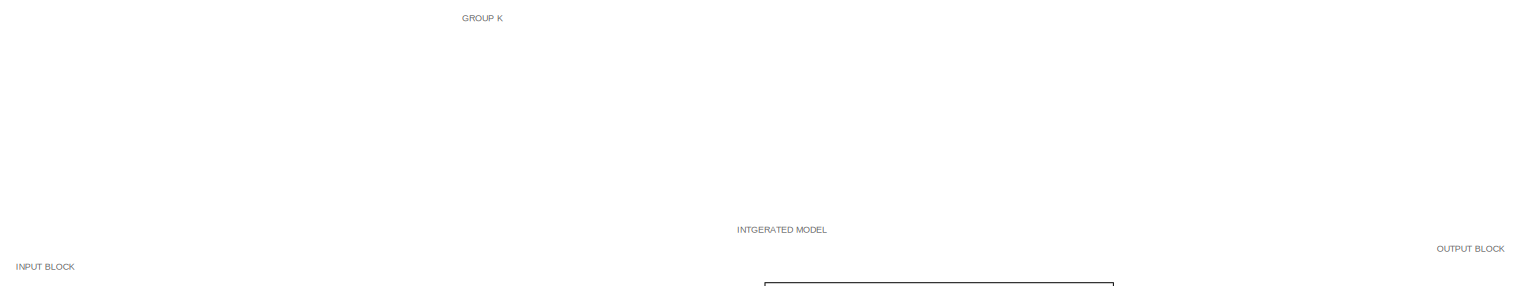
[diagram: root canvas - part 1/4, top center region]
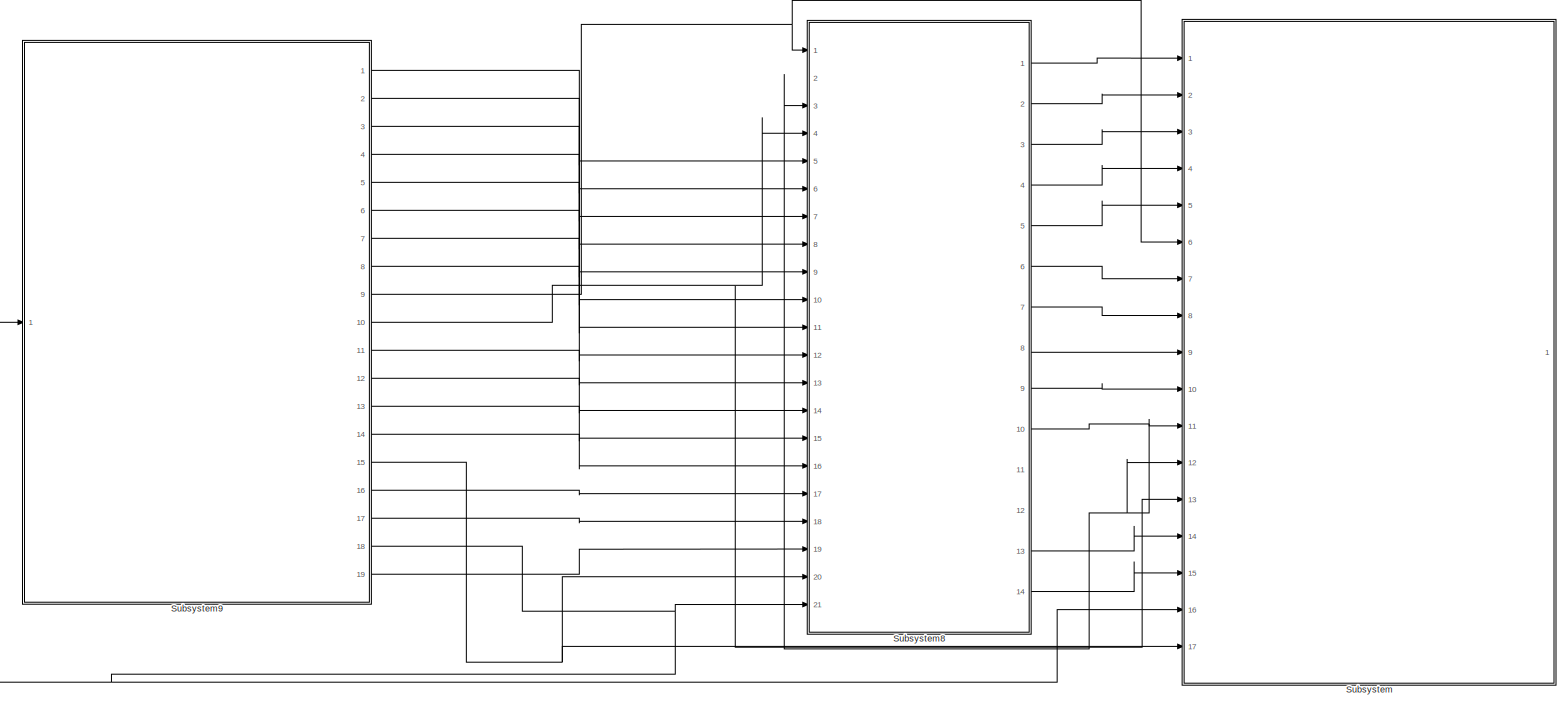
[diagram: root canvas - part 2/4, central region]
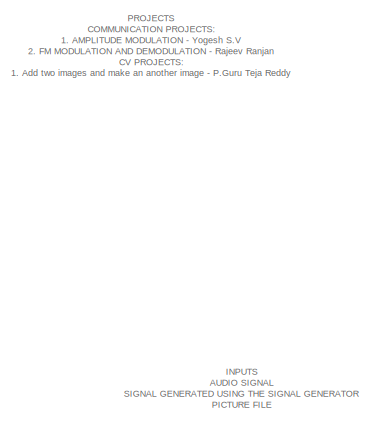
[diagram: root canvas - part 3/4, middle left region]
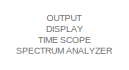
[diagram: root canvas - part 4/4, middle right region]
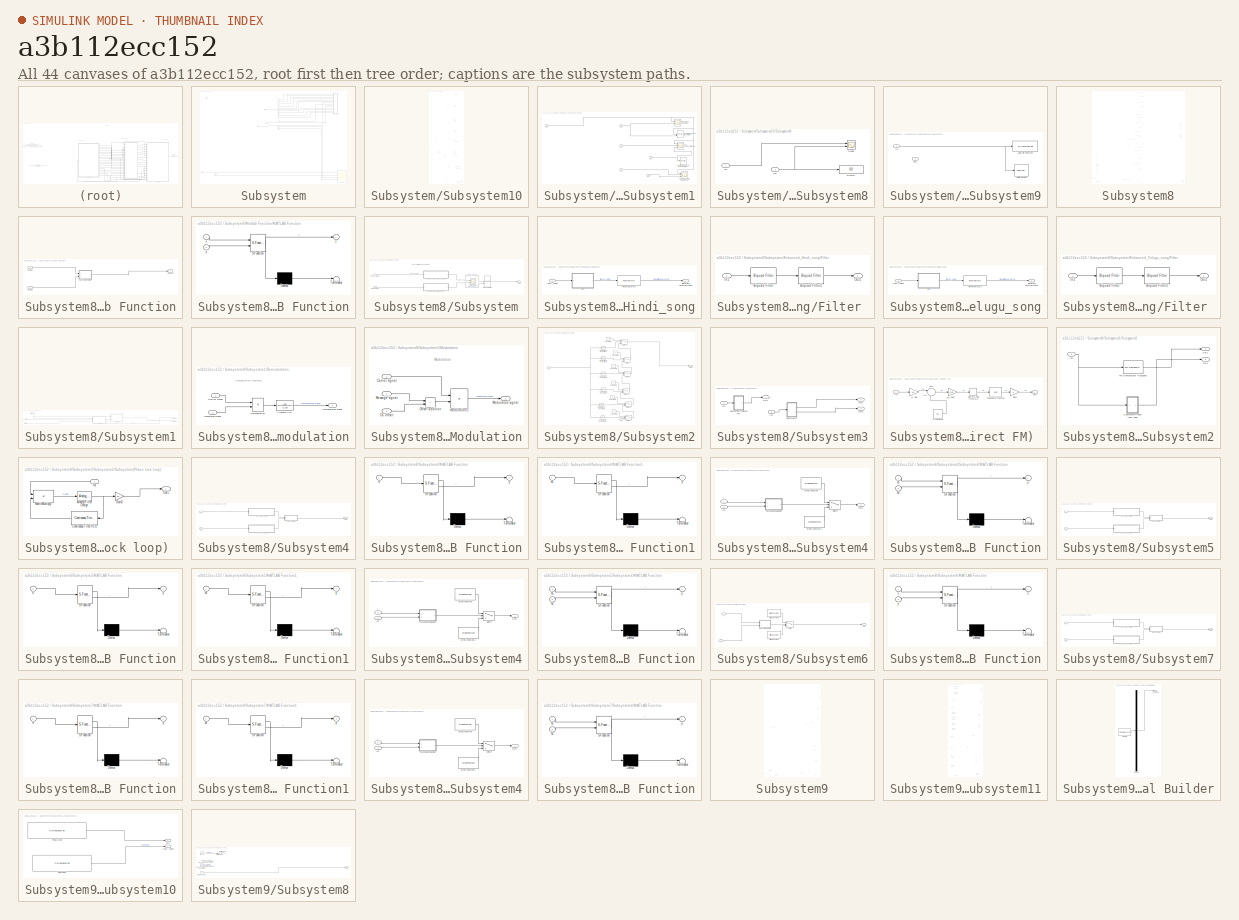
[diagram: thumbnail index - all 44 canvases of the model, root first then tree order]
MODEL slx_a3b112ecc152
KIND model
CONFIG AbsTol = auto
CONFIG EnableMultiTasking = off
CONFIG FixedStep = auto
CONFIG MaxStep = auto
CONFIG MinStep = auto
CONFIG RelTol = 1e-3
CONFIG SampleTimeConstraint = Unconstrained
CONFIG SolverName = VariableStepAuto
CONFIG StartTime = 0.0
CONFIG StopTime = 10.0
BLOCK [SubSystem] Subsystem
  PortSchema = {"entries":[{"content":{"sides":[{"content":{"connectorIds":["In1","In2","In3","In4","In5","In6","In7","In8","In9","In10","In11","In12","In13","In14","In15","In16","In17"]},"type":"ConnectorPlacement.EquallySpacedRectSide","uuid":"30eb3b3b-e642-47c5-bd95-9ad21aad3d43"},{"content":{"connectorIds":[],"side":"RIGHT"},"type":"ConnectorPlacement.EquallySpacedRectSide","uuid":"7c869e27-b9a3-4d84-b0f1-03...<+488ch>
  Ports = [17, 1]
  RequestExecContextInheritance = off
BLOCK [Inport] Subsystem/In1
BLOCK [Inport] Subsystem/In10
  Port = 10
BLOCK [Inport] Subsystem/In11
  Port = 11
BLOCK [Inport] Subsystem/In12
  Port = 12
BLOCK [Inport] Subsystem/In14
  Port = 14
BLOCK [Inport] Subsystem/In15
  Port = 15
BLOCK [Inport] Subsystem/In16
  Port = 16
BLOCK [Inport] Subsystem/In17
  Port = 17
BLOCK [Inport] Subsystem/In2
  Port = 2
BLOCK [Inport] Subsystem/In3
  Port = 3
BLOCK [Inport] Subsystem/In4
  Port = 4
BLOCK [Inport] Subsystem/In5
  Port = 5
BLOCK [Inport] Subsystem/In6
  Port = 6
BLOCK [Inport] Subsystem/In7
  Port = 7
BLOCK [Inport] Subsystem/In8
  Port = 8
BLOCK [Inport] Subsystem/In9
  Port = 9
BLOCK [Inport] Subsystem/M2
  Port = 13
BLOCK [Outport] Subsystem/Out1
BLOCK [Scope] Subsystem/Scope
  Floating = off
  NumInputPorts = 4
  Ports = [4]
  ScopeSpecificationString = Simulink.scopes.TimeScopeBlockCfg('CurrentConfiguration', extmgr.ConfigurationSet(extmgr.Configuration('Core','General UI',true),extmgr.Configuration('Core','Source UI',true),extmgr.Configuration('Sources','WiredSimulink',true,'DataLoggingVariableName','ScopeData4'),extmgr.Configuration('Visuals','Time Domain',true,'SerializedDisplays',{struct('MinYLimReal','-1.24999','MaxYLimReal','1.25','YLabelR...<+3433ch>
BLOCK [SubSystem] Subsystem/Subsystem10
  Ports = [14]
  RequestExecContextInheritance = off
BLOCK [Display] Subsystem/Subsystem10/Display
  Decimation = 1
  Ports = [1]
BLOCK [Display] Subsystem/Subsystem10/Display1
  Decimation = 1
  Ports = [1]
BLOCK [Display] Subsystem/Subsystem10/Display2
  Decimation = 1
  Ports = [1]
BLOCK [Display] Subsystem/Subsystem10/Display3
  Decimation = 1
  Ports = [1]
BLOCK [Display] Subsystem/Subsystem10/Display4
  Decimation = 1
  Ports = [1]
BLOCK [Inport] Subsystem/Subsystem10/In1
BLOCK [Inport] Subsystem/Subsystem10/In10
  Port = 10
BLOCK [Inport] Subsystem/Subsystem10/In11
  Port = 11
BLOCK [Inport] Subsystem/Subsystem10/In12
  Port = 12
BLOCK [Inport] Subsystem/Subsystem10/In13
  Port = 13
BLOCK [Inport] Subsystem/Subsystem10/In14
  Port = 14
BLOCK [Inport] Subsystem/Subsystem10/In2
  Port = 2
BLOCK [Inport] Subsystem/Subsystem10/In3
  Port = 3
BLOCK [Inport] Subsystem/Subsystem10/In4
  Port = 4
BLOCK [Inport] Subsystem/Subsystem10/In5
  Port = 5
BLOCK [Inport] Subsystem/Subsystem10/In6
  Port = 6
BLOCK [Inport] Subsystem/Subsystem10/In8
  Port = 8
BLOCK [Inport] Subsystem/Subsystem10/In9
  Port = 9
BLOCK [Inport] Subsystem/Subsystem10/M2
  Port = 7
BLOCK [SubSystem] Subsystem/Subsystem10/Subsystem1
  Ports = [6]
  RequestExecContextInheritance = off
BLOCK [Scope] Subsystem/Subsystem10/Subsystem1/                       FM Demodulation (Discriminator) 
  Floating = off
  NumInputPorts = 3
  Ports = [3]
  ScopeSpecificationString = Simulink.scopes.TimeScopeBlockCfg('CurrentConfiguration', extmgr.ConfigurationSet(extmgr.Configuration('Core','General UI',true,'FigureColor',[1 1 1]),extmgr.Configuration('Core','Source UI',true),extmgr.Configuration('Sources','WiredSimulink',true,'DataLoggingVariableName','ScopeData1'),extmgr.Configuration('Visuals','Time Domain',true,'SerializedDisplays',{struct('MinYLimReal','-1.25','MaxYLimRe...<+3093ch>
BLOCK [Scope] Subsystem/Subsystem10/Subsystem1/FM Demodulation using PLL
  Floating = off
  NumInputPorts = 3
  Ports = [3]
  ScopeSpecificationString = Simulink.scopes.TimeScopeBlockCfg('CurrentConfiguration', extmgr.ConfigurationSet(extmgr.Configuration('Core','General UI',true,'FigureColor',[1 1 1]),extmgr.Configuration('Core','Source UI',true),extmgr.Configuration('Sources','WiredSimulink',true,'DataLoggingVariableName','ScopeData2'),extmgr.Configuration('Visuals','Time Domain',true,'SerializedDisplays',{struct('MinYLimReal','-1.25','MaxYLimRe...<+3093ch>
BLOCK [Scope] Subsystem/Subsystem10/Subsystem1/Frequency Modulation 
  Floating = off
  NumInputPorts = 2
  Ports = [2]
  ScopeSpecificationString = Simulink.scopes.TimeScopeBlockCfg('CurrentConfiguration', extmgr.ConfigurationSet(extmgr.Configuration('Core','General UI',true,'FigureColor',[1 1 1]),extmgr.Configuration('Core','Source UI',true),extmgr.Configuration('Sources','WiredSimulink',true,'DataLoggingVariableName','ScopeData3'),extmgr.Configuration('Visuals','Time Domain',true,'SerializedDisplays',{struct('MinYLimReal','-1.25','MaxYLimRe...<+2202ch>
BLOCK [Inport] Subsystem/Subsystem10/Subsystem1/In2
  Port = 2
BLOCK [Inport] Subsystem/Subsystem10/Subsystem1/In3
  Port = 3
BLOCK [Inport] Subsystem/Subsystem10/Subsystem1/In4
  Port = 4
BLOCK [Inport] Subsystem/Subsystem10/Subsystem1/In5
  Port = 5
BLOCK [Inport] Subsystem/Subsystem10/Subsystem1/In6
  Port = 6
BLOCK [Inport] Subsystem/Subsystem10/Subsystem1/M2
BLOCK [SpectrumAnalyzer] Subsystem/Subsystem10/Subsystem1/Spectrum Analyzer (modulation)
  NumInputPorts = 2
  ScopeSpecificationString = spbscopes.SpectrumAnalyzerBlockCfg('CurrentConfiguration', extmgr.ConfigurationSet(extmgr.Configuration('Core','General UI',true),extmgr.Configuration('Core','Source UI',true),extmgr.Configuration('Sources','WiredSimulink',true),extmgr.Configuration('Sources','SimulinkEvent',false),extmgr.Configuration('Sources','Simulink',false),extmgr.Configuration('Sources','File',false),extmgr.Configuration('S...<+2812ch>
BLOCK [SpectrumAnalyzer] Subsystem/Subsystem10/Subsystem1/Spectrum Analyzer(demodulation) 
  ScopeSpecificationString = spbscopes.SpectrumAnalyzerBlockCfg('CurrentConfiguration', extmgr.ConfigurationSet(extmgr.Configuration('Core','General UI',true),extmgr.Configuration('Core','Source UI',true),extmgr.Configuration('Sources','WiredSimulink',true),extmgr.Configuration('Sources','SimulinkEvent',false),extmgr.Configuration('Sources','Simulink',false),extmgr.Configuration('Sources','File',false),extmgr.Configuration('S...<+2715ch>
BLOCK [SubSystem] Subsystem/Subsystem10/Subsystem8
  Ports = [2]
  RequestExecContextInheritance = off
BLOCK [Display] Subsystem/Subsystem10/Subsystem8/Display
  Decimation = 1
  Ports = [1]
BLOCK [Inport] Subsystem/Subsystem10/Subsystem8/In1
BLOCK [Inport] Subsystem/Subsystem10/Subsystem8/In2
  Port = 2
BLOCK [Scope] Subsystem/Subsystem10/Subsystem8/Scope
  Floating = off
  NumInputPorts = 2
  Ports = [2]
  ScopeSpecificationString = Simulink.scopes.TimeScopeBlockCfg('CurrentConfiguration', extmgr.ConfigurationSet(extmgr.Configuration('Core','General UI',true),extmgr.Configuration('Core','Source UI',true),extmgr.Configuration('Sources','WiredSimulink',true,'DataLoggingVariableName','ScopeData1'),extmgr.Configuration('Visuals','Time Domain',true,'SerializedDisplays',{struct('MinYLimReal','-1.25','MaxYLimReal','1.25','YLabelReal...<+2064ch>
BLOCK [SubSystem] Subsystem/Subsystem10/Subsystem9
  Ports = [1, 1]
  RequestExecContextInheritance = off
BLOCK [Reference] Subsystem/Subsystem10/Subsystem9/ Audio file Recorder  REF=dspvision/To Multimedia File
  Ports = [1]
  SourceBlock = dspvision/To Multimedia File
  SourceProductBaseCode = DS,HW,VP
  SourceType = To Multimedia File
BLOCK [Reference] Subsystem/Subsystem10/Subsystem9/Audio Output  REF=dspsnks4/Audio Device
Writer
  Ports = [1]
  SourceBlock = dspsnks4/Audio Device\nWriter
  SourceProductBaseCode = DS
  SourceType = Audio Device Writer
BLOCK [Inport] Subsystem/Subsystem10/Subsystem9/In1
BLOCK [Outport] Subsystem/Subsystem10/Subsystem9/Out1
BLOCK [VideoViewer] Subsystem/Subsystem10/Video Viewer
  FigPos = [1376 392 357 191]
  ScopeSpecificationString = vipscopes.VideoViewerScopeCfg('CurrentConfiguration', extmgr.ConfigurationSet(extmgr.Configuration('Core','General UI',true),extmgr.Configuration('Core','Source UI',true),extmgr.Configuration('Sources','WiredSimulink',true),extmgr.Configuration('Visuals','Video',true),extmgr.Configuration('Tools','Image Navigation Tools',true),extmgr.Configuration('Tools','Image Tool',true),extmgr.Configuration('T...<+102ch>
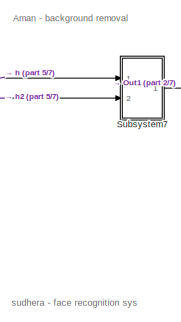
[diagram: Subsystem8 - part 1/7, top center region]
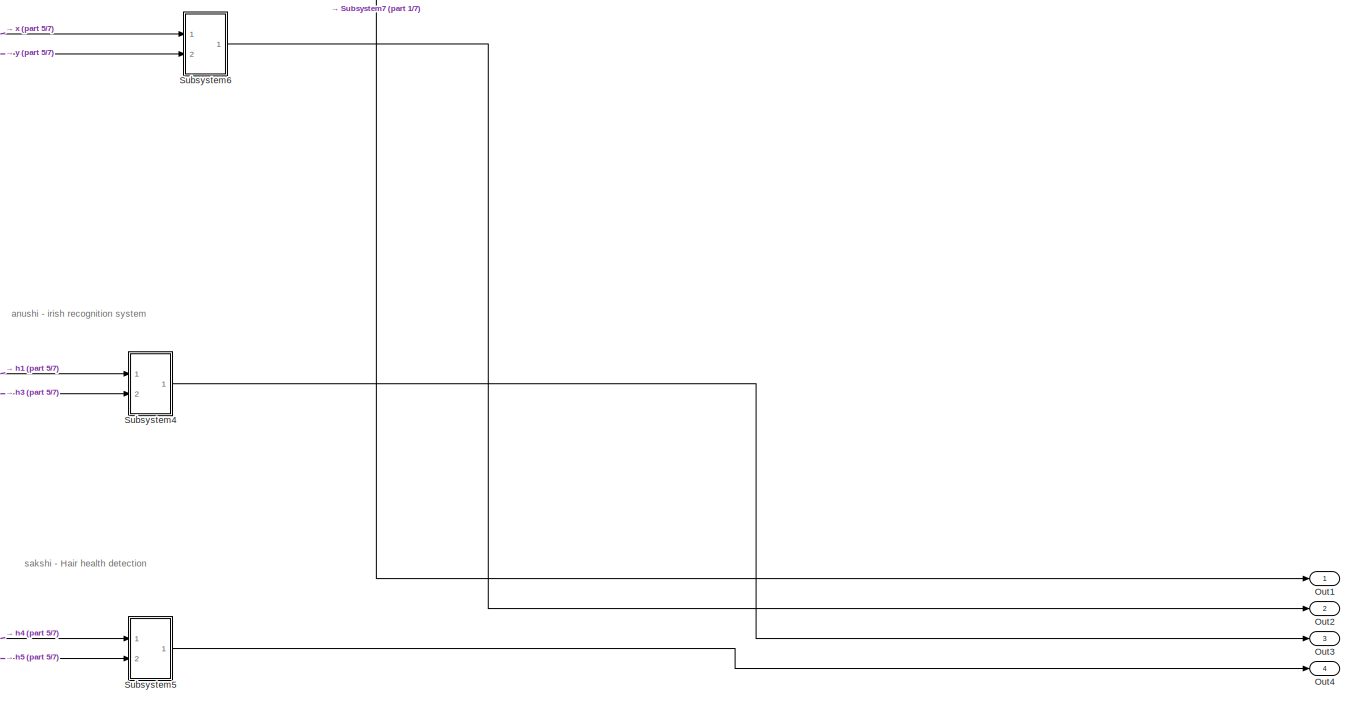
[diagram: Subsystem8 - part 2/7, top right region]
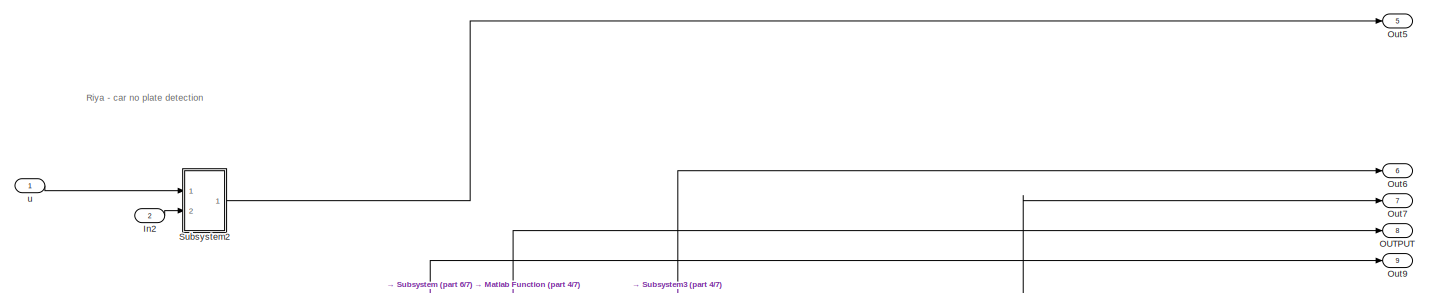
[diagram: Subsystem8 - part 3/7, middle right region]
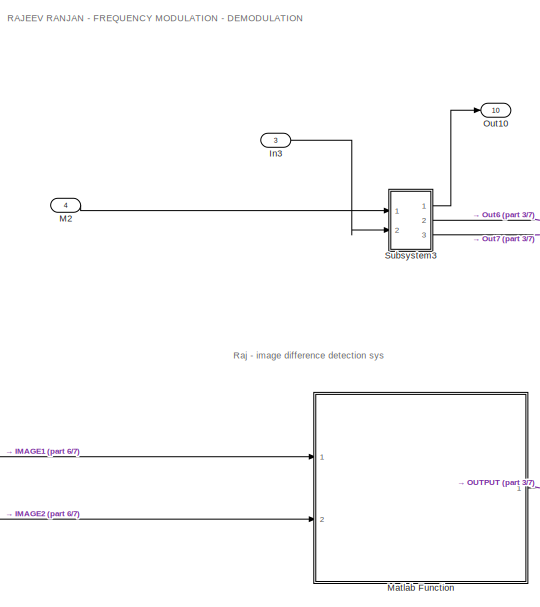
[diagram: Subsystem8 - part 4/7, central region]
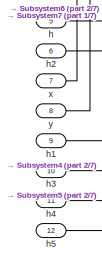
[diagram: Subsystem8 - part 5/7, bottom left region]
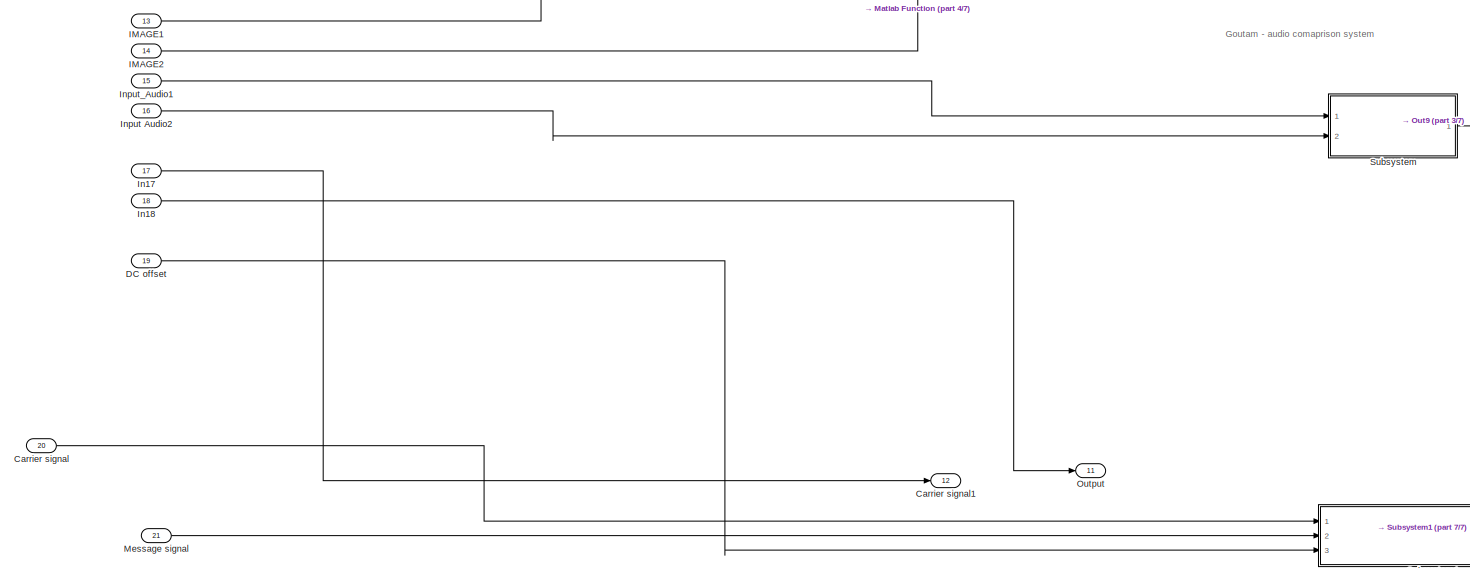
[diagram: Subsystem8 - part 6/7, bottom left region]
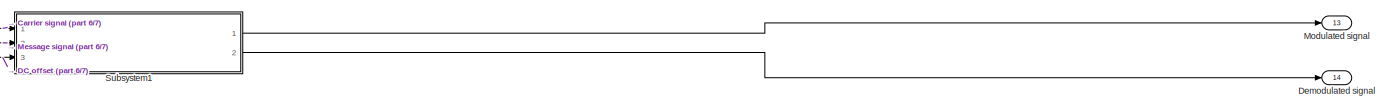
[diagram: Subsystem8 - part 7/7, bottom right region]
BLOCK [SubSystem] Subsystem8
  Ports = [21, 14]
  RequestExecContextInheritance = off
BLOCK [Inport] Subsystem8/Carrier signal
  Port = 20
BLOCK [Outport] Subsystem8/Carrier signal1
  Port = 12
BLOCK [Inport] Subsystem8/DC offset
  Port = 19
BLOCK [Outport] Subsystem8/Demodulated signal
  Port = 14
BLOCK [Inport] Subsystem8/IMAGE1
  Port = 13
BLOCK [Inport] Subsystem8/IMAGE2
  Port = 14
BLOCK [Inport] Subsystem8/In17
  Port = 17
BLOCK [Inport] Subsystem8/In18
  Port = 18
BLOCK [Inport] Subsystem8/In2
  Port = 2
BLOCK [Inport] Subsystem8/In3
  Port = 3
BLOCK [Inport] Subsystem8/Input Audio2
  Port = 16
BLOCK [Inport] Subsystem8/Input_Audio1
  Port = 15
BLOCK [Inport] Subsystem8/M2
  Port = 4
BLOCK [SubSystem] Subsystem8/Matlab Function
  Ports = [2, 1]
  RequestExecContextInheritance = off
BLOCK [Inport] Subsystem8/Matlab Function/IMAGE1
BLOCK [Inport] Subsystem8/Matlab Function/IMAGE2
  Port = 2
BLOCK [SubSystem] Subsystem8/Matlab Function/MATLAB Function
  ErrorFcn = Stateflow.Translate.translate
  PermitHierarchicalResolution = ExplicitOnly
  Ports = [2, 1]
  RequestExecContextInheritance = off
  SFBlockType = MATLAB Function
  TreatAsAtomicUnit = on
BLOCK [Demux] Subsystem8/Matlab Function/MATLAB Function/ Demux 
  Outputs = 1
  Ports = [1, 1]
BLOCK [S-Function] Subsystem8/Matlab Function/MATLAB Function/ SFunction 
  EnableBusSupport = on
  FunctionName = sf_sfun
  PortCounts = [2 2]
  Ports = [2, 2]
  SFcnIsStateOwnerBlock = off
  SFunctionDeploymentMode = off
  Tag = Stateflow S-Function 1
BLOCK [Terminator] Subsystem8/Matlab Function/MATLAB Function/ Terminator 
BLOCK [Inport] Subsystem8/Matlab Function/MATLAB Function/x
BLOCK [Inport] Subsystem8/Matlab Function/MATLAB Function/y
  Port = 2
BLOCK [Outport] Subsystem8/Matlab Function/MATLAB Function/z
BLOCK [Outport] Subsystem8/Matlab Function/OUTPUT
BLOCK [Inport] Subsystem8/Message signal
  Port = 21
BLOCK [Outport] Subsystem8/Modulated signal
  Port = 13
BLOCK [Outport] Subsystem8/OUTPUT
  Port = 8
BLOCK [Outport] Subsystem8/Out1
BLOCK [Outport] Subsystem8/Out10
  Port = 10
BLOCK [Outport] Subsystem8/Out2
  Port = 2
BLOCK [Outport] Subsystem8/Out3
  Port = 3
BLOCK [Outport] Subsystem8/Out4
  Port = 4
BLOCK [Outport] Subsystem8/Out5
  Port = 5
BLOCK [Outport] Subsystem8/Out6
  Port = 6
BLOCK [Outport] Subsystem8/Out7
  Port = 7
BLOCK [Outport] Subsystem8/Out9
  Port = 9
BLOCK [Outport] Subsystem8/Output
  Port = 11
BLOCK [SubSystem] Subsystem8/Subsystem
  Ports = [2, 1]
  RequestExecContextInheritance = off
BLOCK [ManualSwitch] Subsystem8/Subsystem/ Manual Switch
  CurrentSetting = 0
BLOCK [SubSystem] Subsystem8/Subsystem/Enhanced_Hindi_song
  Ports = [1, 1]
  RequestExecContextInheritance = off
BLOCK [SubSystem] Subsystem8/Subsystem/Enhanced_Hindi_song/Filter 
  Ports = [1, 1]
  RequestExecContextInheritance = off
BLOCK [Reference] Subsystem8/Subsystem/Enhanced_Hindi_song/Filter /Biquad Filter  REF=dsparch4/Biquad Filter
  Ports = [1, 1]
  SourceBlock = dsparch4/Biquad Filter
  SourceProductBaseCode = DS
  SourceType = Biquad Filter
  UserDataPersistent = on
BLOCK [Reference] Subsystem8/Subsystem/Enhanced_Hindi_song/Filter /Biquad Filter1  REF=dsparch4/Biquad Filter
  Ports = [1, 1]
  SourceBlock = dsparch4/Biquad Filter
  SourceProductBaseCode = DS
  SourceType = Biquad Filter
  UserDataPersistent = on
BLOCK [Inport] Subsystem8/Subsystem/Enhanced_Hindi_song/Filter /In1
BLOCK [Outport] Subsystem8/Subsystem/Enhanced_Hindi_song/Filter /Out1
BLOCK [Inport] Subsystem8/Subsystem/Enhanced_Hindi_song/Input_Audio2
BLOCK [Reference] Subsystem8/Subsystem/Enhanced_Hindi_song/Reverberator2  REF=audioeffects/Reverberator
  Ports = [1, 1]
  SourceBlock = audioeffects/Reverberator
  SourceProductBaseCode = AU
  SourceType = audio.simulink.Reverberator
BLOCK [Outport] Subsystem8/Subsystem/Enhanced_Hindi_song/Signal with Reverberation2
BLOCK [SubSystem] Subsystem8/Subsystem/Enhanced_Telugu_song
  Ports = [1, 1]
  RequestExecContextInheritance = off
BLOCK [SubSystem] Subsystem8/Subsystem/Enhanced_Telugu_song/Filter 
  Ports = [1, 1]
  RequestExecContextInheritance = off
BLOCK [Reference] Subsystem8/Subsystem/Enhanced_Telugu_song/Filter /Biquad Filter  REF=dsparch4/Biquad Filter
  Ports = [1, 1]
  SourceBlock = dsparch4/Biquad Filter
  SourceProductBaseCode = DS
  SourceType = Biquad Filter
  UserDataPersistent = on
BLOCK [Reference] Subsystem8/Subsystem/Enhanced_Telugu_song/Filter /Biquad Filter1  REF=dsparch4/Biquad Filter
  Ports = [1, 1]
  SourceBlock = dsparch4/Biquad Filter
  SourceProductBaseCode = DS
  SourceType = Biquad Filter
  UserDataPersistent = on
BLOCK [Inport] Subsystem8/Subsystem/Enhanced_Telugu_song/Filter /In1
BLOCK [Outport] Subsystem8/Subsystem/Enhanced_Telugu_song/Filter /Out1
BLOCK [Inport] Subsystem8/Subsystem/Enhanced_Telugu_song/Input_Audio1
BLOCK [Reference] Subsystem8/Subsystem/Enhanced_Telugu_song/Reverberator2  REF=audioeffects/Reverberator
  Ports = [1, 1]
  SourceBlock = audioeffects/Reverberator
  SourceProductBaseCode = AU
  SourceType = audio.simulink.Reverberator
BLOCK [Outport] Subsystem8/Subsystem/Enhanced_Telugu_song/Signal with Reverberation1
BLOCK [Inport] Subsystem8/Subsystem/Input Audio2
  Port = 2
BLOCK [Inport] Subsystem8/Subsystem/Input_Audio1
BLOCK [Outport] Subsystem8/Subsystem/Out1
BLOCK [Scope] Subsystem8/Subsystem/Time Scope
  DefaultConfigurationName = spbscopes.TimeScopeBlockCfg
  Floating = off
  NameLocation = left
  NumInputPorts = 2
  Ports = [2]
  ScopeSpecificationString = spbscopes.TimeScopeBlockCfg('CurrentConfiguration', extmgr.ConfigurationSet(extmgr.Configuration('Core','General UI',true,'FigureColor',[0.156862745098039 0.156862745098039 0.156862745098039]),extmgr.Configuration('Core','Source UI',true),extmgr.Configuration('Sources','WiredSimulink',true),extmgr.Configuration('Visuals','Time Domain',true,'DisplayLayoutDimensions',[2 1],'DisplayPropertyDefaults',...<+2099ch>
  UserDataPersistent = on
BLOCK [SubSystem] Subsystem8/Subsystem1
  Ports = [3, 2]
  RequestExecContextInheritance = off
BLOCK [Inport] Subsystem8/Subsystem1/Carrier signal
BLOCK [Inport] Subsystem8/Subsystem1/DC offset
  Port = 3
BLOCK [Outport] Subsystem8/Subsystem1/Demodulated signal
  Port = 2
BLOCK [SubSystem] Subsystem8/Subsystem1/Demodulation
  Ports = [2, 1]
  RequestExecContextInheritance = off
BLOCK [Inport] Subsystem8/Subsystem1/Demodulation/Carrier signal
BLOCK [Outport] Subsystem8/Subsystem1/Demodulation/Demodulated signal
BLOCK [Product] Subsystem8/Subsystem1/Demodulation/Demodulation
  Ports = [2, 1]
BLOCK [Inport] Subsystem8/Subsystem1/Demodulation/Modulated signal
  Port = 2
BLOCK [TransferFcn] Subsystem8/Subsystem1/Demodulation/Transfer Fcn
  Denominator = [1 15]
  Numerator = [15]
BLOCK [Inport] Subsystem8/Subsystem1/Message signal
  Port = 2
BLOCK [Outport] Subsystem8/Subsystem1/Modulated signal
BLOCK [SubSystem] Subsystem8/Subsystem1/Modulation
  Ports = [3, 1]
  RequestExecContextInheritance = off
BLOCK [Inport] Subsystem8/Subsystem1/Modulation/Carrier signal
BLOCK [Inport] Subsystem8/Subsystem1/Modulation/DC offset
  Port = 3
BLOCK [Inport] Subsystem8/Subsystem1/Modulation/Message signal
  Port = 2
BLOCK [Outport] Subsystem8/Subsystem1/Modulation/Modulated signal
BLOCK [Sum] Subsystem8/Subsystem1/Modulation/Offset addition
  IconShape = rectangular
  Ports = [2, 1]
BLOCK [Product] Subsystem8/Subsystem1/Modulation/modulation1
  Ports = [2, 1]
BLOCK [SubSystem] Subsystem8/Subsystem2
  Ports = [2, 1]
  RequestExecContextInheritance = off
BLOCK [Reference] Subsystem8/Subsystem2/Compare To Constant  REF=simulink/Logic and Bit
Operations/Compare
To Constant
  Ports = [1, 1]
  SourceBlock = simulink/Logic and Bit\nOperations/Compare\nTo Constant
  SourceProductBaseCode = SL
  SourceType = Compare To Constant
BLOCK [Reference] Subsystem8/Subsystem2/Compare To Constant1  REF=simulink/Logic and Bit
Operations/Compare
To Constant
  Ports = [1, 1]
  SourceBlock = simulink/Logic and Bit\nOperations/Compare\nTo Constant
  SourceProductBaseCode = SL
  SourceType = Compare To Constant
BLOCK [Reference] Subsystem8/Subsystem2/Compare To Constant2  REF=simulink/Logic and Bit
Operations/Compare
To Constant
  Ports = [1, 1]
  SourceBlock = simulink/Logic and Bit\nOperations/Compare\nTo Constant
  SourceProductBaseCode = SL
  SourceType = Compare To Constant
BLOCK [Reference] Subsystem8/Subsystem2/Compare To Constant3  REF=simulink/Logic and Bit
Operations/Compare
To Constant
  Ports = [1, 1]
  SourceBlock = simulink/Logic and Bit\nOperations/Compare\nTo Constant
  SourceProductBaseCode = SL
  SourceType = Compare To Constant
BLOCK [Reference] Subsystem8/Subsystem2/Compare To Constant4  REF=simulink/Logic and Bit
Operations/Compare
To Constant
  Ports = [1, 1]
  SourceBlock = simulink/Logic and Bit\nOperations/Compare\nTo Constant
  SourceProductBaseCode = SL
  SourceType = Compare To Constant
BLOCK [Reference] Subsystem8/Subsystem2/Compare To Constant5  REF=simulink/Logic and Bit
Operations/Compare
To Constant
  Ports = [1, 1]
  SourceBlock = simulink/Logic and Bit\nOperations/Compare\nTo Constant
  SourceProductBaseCode = SL
  SourceType = Compare To Constant
BLOCK [Constant] Subsystem8/Subsystem2/Constant1
BLOCK [Constant] Subsystem8/Subsystem2/Constant2
  Value = 2
BLOCK [Constant] Subsystem8/Subsystem2/Constant3
  Value = 3
BLOCK [Constant] Subsystem8/Subsystem2/Constant4
  Value = 4
BLOCK [Constant] Subsystem8/Subsystem2/Constant5
  Value = 5
BLOCK [Constant] Subsystem8/Subsystem2/Constant6
  Value = 6
BLOCK [Inport] Subsystem8/Subsystem2/In2
  Port = 2
BLOCK [Outport] Subsystem8/Subsystem2/Out1
BLOCK [Switch] Subsystem8/Subsystem2/Switch
  InputSameDT = off
  SaturateOnIntegerOverflow = off
BLOCK [Switch] Subsystem8/Subsystem2/Switch1
  InputSameDT = off
  SaturateOnIntegerOverflow = off
BLOCK [Switch] Subsystem8/Subsystem2/Switch2
  InputSameDT = off
  SaturateOnIntegerOverflow = off
BLOCK [Switch] Subsystem8/Subsystem2/Switch3
  InputSameDT = off
  SaturateOnIntegerOverflow = off
BLOCK [Switch] Subsystem8/Subsystem2/Switch4
  InputSameDT = off
  SaturateOnIntegerOverflow = off
BLOCK [Switch] Subsystem8/Subsystem2/Switch5
  InputSameDT = off
  SaturateOnIntegerOverflow = off
BLOCK [Inport] Subsystem8/Subsystem2/u
BLOCK [SubSystem] Subsystem8/Subsystem3
  Ports = [2, 3]
  RequestExecContextInheritance = off
BLOCK [Inport] Subsystem8/Subsystem3/In2
  Port = 2
BLOCK [Inport] Subsystem8/Subsystem3/M2
BLOCK [Outport] Subsystem8/Subsystem3/Out1
BLOCK [Outport] Subsystem8/Subsystem3/Out2
  Port = 2
BLOCK [Outport] Subsystem8/Subsystem3/Out3
  Port = 3
BLOCK [SubSystem] Subsystem8/Subsystem3/Subsystem(Indirect FM) 
  Ports = [1, 1]
  RequestExecContextInheritance = off
BLOCK [DiscreteIntegrator] Subsystem8/Subsystem3/Subsystem(Indirect FM) /Discrete-Time Integrator 
  ICPrevOutput = DiscIntNeverNeededParam
  ICPrevScaledInput = DiscIntNeverNeededParam
  InitialConditionSetting = Auto
  Ports = [1, 1]
  SampleTime = -1
BLOCK [Gain] Subsystem8/Subsystem3/Subsystem(Indirect FM) /Gain1
  Gain = 2*pi
BLOCK [Gain] Subsystem8/Subsystem3/Subsystem(Indirect FM) /Gain2 
BLOCK [Inport] Subsystem8/Subsystem3/Subsystem(Indirect FM) /In1
BLOCK [Gain] Subsystem8/Subsystem3/Subsystem(Indirect FM) /Kf Gain
  Gain = 10
BLOCK [Outport] Subsystem8/Subsystem3/Subsystem(Indirect FM) /Out1
BLOCK [Sum] Subsystem8/Subsystem3/Subsystem(Indirect FM) /Sum
  Inputs = |++
  Ports = [2, 1]
BLOCK [Trigonometry] Subsystem8/Subsystem3/Subsystem(Indirect FM) /Trignometric Function
  Operator = cos
  Ports = [1, 1]
BLOCK [Constant] Subsystem8/Subsystem3/Subsystem(Indirect FM) /fc constant
  Value = 20
BLOCK [SubSystem] Subsystem8/Subsystem3/Subsystem2
  Ports = [1, 2]
  RequestExecContextInheritance = off
BLOCK [Reference] Subsystem8/Subsystem3/Subsystem2/FM Demodulator Passband   REF=commanapbnd3/FM
Demodulator
Passband
  Ports = [1, 1]
  SourceBlock = commanapbnd3/FM\nDemodulator\nPassband
  SourceProductBaseCode = CM
  SourceType = FM Demodulator Passband
BLOCK [Inport] Subsystem8/Subsystem3/Subsystem2/In1
BLOCK [Outport] Subsystem8/Subsystem3/Subsystem2/Out1
BLOCK [Outport] Subsystem8/Subsystem3/Subsystem2/Out2
  Port = 2
BLOCK [SubSystem] Subsystem8/Subsystem3/Subsystem2/Subsystem(Phase lock loop) 
  Ports = [1, 1]
  RequestExecContextInheritance = off
BLOCK [Reference] Subsystem8/Subsystem3/Subsystem2/Subsystem(Phase lock loop) /Analog Filter Design   REF=dsparch4/Analog
Filter Design
  Ports = [1, 1]
  SourceBlock = dsparch4/Analog\nFilter Design
  SourceProductBaseCode = DS
  SourceType = Analog Filter Design
BLOCK [Reference] Subsystem8/Subsystem3/Subsystem2/Subsystem(Phase lock loop) /Continuous-Time VCO   REF=commsynccomp2/Continuous-Time
VCO
  Ports = [1, 1]
  SourceBlock = commsynccomp2/Continuous-Time\nVCO
  SourceProductBaseCode = CM
  SourceType = Continuous-Time VCO
BLOCK [Gain] Subsystem8/Subsystem3/Subsystem2/Subsystem(Phase lock loop) /Gain3 
  Gain = 10
BLOCK [Inport] Subsystem8/Subsystem3/Subsystem2/Subsystem(Phase lock loop) /In1
BLOCK [Product] Subsystem8/Subsystem3/Subsystem2/Subsystem(Phase lock loop) /MatrixMultiply
  Multiplication = Matrix(*)
  Ports = [2, 1]
BLOCK [Outport] Subsystem8/Subsystem3/Subsystem2/Subsystem(Phase lock loop) /Out1
BLOCK [SubSystem] Subsystem8/Subsystem4
  Ports = [2, 1]
  RequestExecContextInheritance = off
BLOCK [SubSystem] Subsystem8/Subsystem4/MATLAB Function
  ErrorFcn = Stateflow.Translate.translate
  PermitHierarchicalResolution = ExplicitOnly
  Ports = [1, 1]
  RequestExecContextInheritance = off
  SFBlockType = MATLAB Function
  TreatAsAtomicUnit = on
BLOCK [Demux] Subsystem8/Subsystem4/MATLAB Function/ Demux 
  Outputs = 1
  Ports = [1, 1]
BLOCK [S-Function] Subsystem8/Subsystem4/MATLAB Function/ SFunction 
  EnableBusSupport = on
  FunctionName = sf_sfun
  PortCounts = [1 2]
  Ports = [1, 2]
  SFcnIsStateOwnerBlock = off
  SFunctionDeploymentMode = off
  Tag = Stateflow S-Function 5
BLOCK [Terminator] Subsystem8/Subsystem4/MATLAB Function/ Terminator 
BLOCK [Inport] Subsystem8/Subsystem4/MATLAB Function/h
BLOCK [Outport] Subsystem8/Subsystem4/MATLAB Function/y
BLOCK [SubSystem] Subsystem8/Subsystem4/MATLAB Function1
  ErrorFcn = Stateflow.Translate.translate
  PermitHierarchicalResolution = ExplicitOnly
  Ports = [1, 1]
  RequestExecContextInheritance = off
  SFBlockType = MATLAB Function
  TreatAsAtomicUnit = on
BLOCK [Demux] Subsystem8/Subsystem4/MATLAB Function1/ Demux 
  Outputs = 1
  Ports = [1, 1]
BLOCK [S-Function] Subsystem8/Subsystem4/MATLAB Function1/ SFunction 
  EnableBusSupport = on
  FunctionName = sf_sfun
  PortCounts = [1 2]
  Ports = [1, 2]
  SFcnIsStateOwnerBlock = off
  SFunctionDeploymentMode = off
  Tag = Stateflow S-Function 6
BLOCK [Terminator] Subsystem8/Subsystem4/MATLAB Function1/ Terminator 
BLOCK [Inport] Subsystem8/Subsystem4/MATLAB Function1/h2
BLOCK [Outport] Subsystem8/Subsystem4/MATLAB Function1/y
BLOCK [Outport] Subsystem8/Subsystem4/Out1
BLOCK [SubSystem] Subsystem8/Subsystem4/Subsystem4
  Ports = [2, 1]
  RequestExecContextInheritance = off
BLOCK [Inport] Subsystem8/Subsystem4/Subsystem4/In2
  Port = 2
BLOCK [SubSystem] Subsystem8/Subsystem4/Subsystem4/MATLAB Function
  ErrorFcn = Stateflow.Translate.translate
  PermitHierarchicalResolution = ExplicitOnly
  Ports = [2, 1]
  RequestExecContextInheritance = off
  SFBlockType = MATLAB Function
  TreatAsAtomicUnit = on
BLOCK [Demux] Subsystem8/Subsystem4/Subsystem4/MATLAB Function/ Demux 
  Outputs = 1
  Ports = [1, 1]
BLOCK [S-Function] Subsystem8/Subsystem4/Subsystem4/MATLAB Function/ SFunction 
  EnableBusSupport = on
  FunctionName = sf_sfun
  PortCounts = [2 2]
  Ports = [2, 2]
  SFcnIsStateOwnerBlock = off
  SFunctionDeploymentMode = off
  Tag = Stateflow S-Function 7
BLOCK [Terminator] Subsystem8/Subsystem4/Subsystem4/MATLAB Function/ Terminator 
BLOCK [Inport] Subsystem8/Subsystem4/Subsystem4/MATLAB Function/h1
BLOCK [Inport] Subsystem8/Subsystem4/Subsystem4/MATLAB Function/h2
  Port = 2
BLOCK [Outport] Subsystem8/Subsystem4/Subsystem4/MATLAB Function/y
BLOCK [Outport] Subsystem8/Subsystem4/Subsystem4/Out1
BLOCK [StringConstant] Subsystem8/Subsystem4/Subsystem4/String Constant
  String = "Not Healthy"
BLOCK [StringConstant] Subsystem8/Subsystem4/Subsystem4/String Constant1
  String = "Healthy"
BLOCK [Switch] Subsystem8/Subsystem4/Subsystem4/Switch
  Criteria = u2 > Threshold
  InputSameDT = off
  SaturateOnIntegerOverflow = off
BLOCK [Inport] Subsystem8/Subsystem4/Subsystem4/y
BLOCK [Inport] Subsystem8/Subsystem4/h
BLOCK [Inport] Subsystem8/Subsystem4/h2
  Port = 2
BLOCK [SubSystem] Subsystem8/Subsystem5
  Ports = [2, 1]
  RequestExecContextInheritance = off
BLOCK [SubSystem] Subsystem8/Subsystem5/MATLAB Function
  ErrorFcn = Stateflow.Translate.translate
  PermitHierarchicalResolution = ExplicitOnly
  Ports = [1, 1]
  RequestExecContextInheritance = off
  SFBlockType = MATLAB Function
  TreatAsAtomicUnit = on
BLOCK [Demux] Subsystem8/Subsystem5/MATLAB Function/ Demux 
  Outputs = 1
  Ports = [1, 1]
BLOCK [S-Function] Subsystem8/Subsystem5/MATLAB Function/ SFunction 
  EnableBusSupport = on
  FunctionName = sf_sfun
  PortCounts = [1 2]
  Ports = [1, 2]
  SFcnIsStateOwnerBlock = off
  SFunctionDeploymentMode = off
  Tag = Stateflow S-Function 2
BLOCK [Terminator] Subsystem8/Subsystem5/MATLAB Function/ Terminator 
BLOCK [Inport] Subsystem8/Subsystem5/MATLAB Function/h
BLOCK [Outport] Subsystem8/Subsystem5/MATLAB Function/y
BLOCK [SubSystem] Subsystem8/Subsystem5/MATLAB Function1
  ErrorFcn = Stateflow.Translate.translate
  PermitHierarchicalResolution = ExplicitOnly
  Ports = [1, 1]
  RequestExecContextInheritance = off
  SFBlockType = MATLAB Function
  TreatAsAtomicUnit = on
BLOCK [Demux] Subsystem8/Subsystem5/MATLAB Function1/ Demux 
  Outputs = 1
  Ports = [1, 1]
BLOCK [S-Function] Subsystem8/Subsystem5/MATLAB Function1/ SFunction 
  EnableBusSupport = on
  FunctionName = sf_sfun
  PortCounts = [1 2]
  Ports = [1, 2]
  SFcnIsStateOwnerBlock = off
  SFunctionDeploymentMode = off
  Tag = Stateflow S-Function 3
BLOCK [Terminator] Subsystem8/Subsystem5/MATLAB Function1/ Terminator 
BLOCK [Inport] Subsystem8/Subsystem5/MATLAB Function1/h2
BLOCK [Outport] Subsystem8/Subsystem5/MATLAB Function1/y
BLOCK [Outport] Subsystem8/Subsystem5/Out1
BLOCK [SubSystem] Subsystem8/Subsystem5/Subsystem4
  Ports = [2, 1]
  RequestExecContextInheritance = off
BLOCK [Inport] Subsystem8/Subsystem5/Subsystem4/In2
  Port = 2
BLOCK [SubSystem] Subsystem8/Subsystem5/Subsystem4/MATLAB Function
  ErrorFcn = Stateflow.Translate.translate
  PermitHierarchicalResolution = ExplicitOnly
  Ports = [2, 1]
  RequestExecContextInheritance = off
  SFBlockType = MATLAB Function
  TreatAsAtomicUnit = on
BLOCK [Demux] Subsystem8/Subsystem5/Subsystem4/MATLAB Function/ Demux 
  Outputs = 1
  Ports = [1, 1]
BLOCK [S-Function] Subsystem8/Subsystem5/Subsystem4/MATLAB Function/ SFunction 
  EnableBusSupport = on
  FunctionName = sf_sfun
  PortCounts = [2 2]
  Ports = [2, 2]
  SFcnIsStateOwnerBlock = off
  SFunctionDeploymentMode = off
  Tag = Stateflow S-Function 4
BLOCK [Terminator] Subsystem8/Subsystem5/Subsystem4/MATLAB Function/ Terminator 
BLOCK [Inport] Subsystem8/Subsystem5/Subsystem4/MATLAB Function/h1
BLOCK [Inport] Subsystem8/Subsystem5/Subsystem4/MATLAB Function/h2
  Port = 2
BLOCK [Outport] Subsystem8/Subsystem5/Subsystem4/MATLAB Function/y
BLOCK [Outport] Subsystem8/Subsystem5/Subsystem4/Out1
BLOCK [StringConstant] Subsystem8/Subsystem5/Subsystem4/String Constant
  String = "Not Healthy"
BLOCK [StringConstant] Subsystem8/Subsystem5/Subsystem4/String Constant1
  String = "Healthy"
BLOCK [Switch] Subsystem8/Subsystem5/Subsystem4/Switch
  Criteria = u2 > Threshold
  InputSameDT = off
  SaturateOnIntegerOverflow = off
BLOCK [Inport] Subsystem8/Subsystem5/Subsystem4/y
BLOCK [Inport] Subsystem8/Subsystem5/h
BLOCK [Inport] Subsystem8/Subsystem5/h2
  Port = 2
BLOCK [SubSystem] Subsystem8/Subsystem6
  Ports = [2, 1]
  RequestExecContextInheritance = off
BLOCK [SubSystem] Subsystem8/Subsystem6/MATLAB Function
  ErrorFcn = Stateflow.Translate.translate
  PermitHierarchicalResolution = ExplicitOnly
  Ports = [2, 1]
  RequestExecContextInheritance = off
  SFBlockType = MATLAB Function
  TreatAsAtomicUnit = on
BLOCK [Demux] Subsystem8/Subsystem6/MATLAB Function/ Demux 
  Outputs = 1
  Ports = [1, 1]
BLOCK [S-Function] Subsystem8/Subsystem6/MATLAB Function/ SFunction 
  EnableBusSupport = on
  FunctionName = sf_sfun
  PortCounts = [2 2]
  Ports = [2, 2]
  SFcnIsStateOwnerBlock = off
  SFunctionDeploymentMode = off
  Tag = Stateflow S-Function 8
BLOCK [Terminator] Subsystem8/Subsystem6/MATLAB Function/ Terminator 
BLOCK [Inport] Subsystem8/Subsystem6/MATLAB Function/x
BLOCK [Inport] Subsystem8/Subsystem6/MATLAB Function/y
  Port = 2
BLOCK [Outport] Subsystem8/Subsystem6/MATLAB Function/z
BLOCK [Outport] Subsystem8/Subsystem6/Out1
BLOCK [StringConstant] Subsystem8/Subsystem6/String Constant
  String = "Same"
BLOCK [StringConstant] Subsystem8/Subsystem6/String Constant1
  String = "Different"
BLOCK [Switch] Subsystem8/Subsystem6/Switch
  Criteria = u2 ~= 0
  InputSameDT = off
  SaturateOnIntegerOverflow = off
BLOCK [Inport] Subsystem8/Subsystem6/x
BLOCK [Inport] Subsystem8/Subsystem6/y
  Port = 2
BLOCK [SubSystem] Subsystem8/Subsystem7
  Ports = [2, 1]
  RequestExecContextInheritance = off
BLOCK [SubSystem] Subsystem8/Subsystem7/MATLAB Function
  ErrorFcn = Stateflow.Translate.translate
  PermitHierarchicalResolution = ExplicitOnly
  Ports = [1, 1]
  RequestExecContextInheritance = off
  SFBlockType = MATLAB Function
  TreatAsAtomicUnit = on
BLOCK [Demux] Subsystem8/Subsystem7/MATLAB Function/ Demux 
  Outputs = 1
  Ports = [1, 1]
BLOCK [S-Function] Subsystem8/Subsystem7/MATLAB Function/ SFunction 
  EnableBusSupport = on
  FunctionName = sf_sfun
  PortCounts = [1 2]
  Ports = [1, 2]
  SFcnIsStateOwnerBlock = off
  SFunctionDeploymentMode = off
  Tag = Stateflow S-Function 9
BLOCK [Terminator] Subsystem8/Subsystem7/MATLAB Function/ Terminator 
BLOCK [Inport] Subsystem8/Subsystem7/MATLAB Function/h
BLOCK [Outport] Subsystem8/Subsystem7/MATLAB Function/y
BLOCK [SubSystem] Subsystem8/Subsystem7/MATLAB Function1
  ErrorFcn = Stateflow.Translate.translate
  PermitHierarchicalResolution = ExplicitOnly
  Ports = [1, 1]
  RequestExecContextInheritance = off
  SFBlockType = MATLAB Function
  TreatAsAtomicUnit = on
BLOCK [Demux] Subsystem8/Subsystem7/MATLAB Function1/ Demux 
  Outputs = 1
  Ports = [1, 1]
BLOCK [S-Function] Subsystem8/Subsystem7/MATLAB Function1/ SFunction 
  EnableBusSupport = on
  FunctionName = sf_sfun
  PortCounts = [1 2]
  Ports = [1, 2]
  SFcnIsStateOwnerBlock = off
  SFunctionDeploymentMode = off
  Tag = Stateflow S-Function 10
BLOCK [Terminator] Subsystem8/Subsystem7/MATLAB Function1/ Terminator 
BLOCK [Inport] Subsystem8/Subsystem7/MATLAB Function1/h2
BLOCK [Outport] Subsystem8/Subsystem7/MATLAB Function1/y
BLOCK [Outport] Subsystem8/Subsystem7/Out1
BLOCK [SubSystem] Subsystem8/Subsystem7/Subsystem4
  Ports = [2, 1]
  RequestExecContextInheritance = off
BLOCK [Inport] Subsystem8/Subsystem7/Subsystem4/In2
  Port = 2
BLOCK [SubSystem] Subsystem8/Subsystem7/Subsystem4/MATLAB Function
  ErrorFcn = Stateflow.Translate.translate
  PermitHierarchicalResolution = ExplicitOnly
  Ports = [2, 1]
  RequestExecContextInheritance = off
  SFBlockType = MATLAB Function
  TreatAsAtomicUnit = on
BLOCK [Demux] Subsystem8/Subsystem7/Subsystem4/MATLAB Function/ Demux 
  Outputs = 1
  Ports = [1, 1]
BLOCK [S-Function] Subsystem8/Subsystem7/Subsystem4/MATLAB Function/ SFunction 
  EnableBusSupport = on
  FunctionName = sf_sfun
  PortCounts = [2 2]
  Ports = [2, 2]
  SFcnIsStateOwnerBlock = off
  SFunctionDeploymentMode = off
  Tag = Stateflow S-Function 11
BLOCK [Terminator] Subsystem8/Subsystem7/Subsystem4/MATLAB Function/ Terminator 
BLOCK [Inport] Subsystem8/Subsystem7/Subsystem4/MATLAB Function/h1
BLOCK [Inport] Subsystem8/Subsystem7/Subsystem4/MATLAB Function/h2
  Port = 2
BLOCK [Outport] Subsystem8/Subsystem7/Subsystem4/MATLAB Function/y
BLOCK [Outport] Subsystem8/Subsystem7/Subsystem4/Out1
BLOCK [StringConstant] Subsystem8/Subsystem7/Subsystem4/String Constant
  String = "Not Healthy"
BLOCK [StringConstant] Subsystem8/Subsystem7/Subsystem4/String Constant1
  String = "Healthy"
BLOCK [Switch] Subsystem8/Subsystem7/Subsystem4/Switch
  Criteria = u2 > Threshold
  InputSameDT = off
  SaturateOnIntegerOverflow = off
BLOCK [Inport] Subsystem8/Subsystem7/Subsystem4/y
BLOCK [Inport] Subsystem8/Subsystem7/h
BLOCK [Inport] Subsystem8/Subsystem7/h2
  Port = 2
BLOCK [Inport] Subsystem8/h
  Port = 5
BLOCK [Inport] Subsystem8/h1
  Port = 9
BLOCK [Inport] Subsystem8/h2
  Port = 6
BLOCK [Inport] Subsystem8/h3
  Port = 10
BLOCK [Inport] Subsystem8/h4
  Port = 11
BLOCK [Inport] Subsystem8/h5
  Port = 12
BLOCK [Inport] Subsystem8/u
BLOCK [Inport] Subsystem8/x
  Port = 7
BLOCK [Inport] Subsystem8/y
  Port = 8
BLOCK [SubSystem] Subsystem9
  Ports = [1, 19]
  RequestExecContextInheritance = off
BLOCK [Outport] Subsystem9/Carrier signal
  Port = 15
BLOCK [Outport] Subsystem9/Carrier signal1
  Port = 16
BLOCK [Outport] Subsystem9/Input Audio2
  Port = 14
BLOCK [Outport] Subsystem9/M2
  Port = 10
BLOCK [Inport] Subsystem9/Message signal
BLOCK [Outport] Subsystem9/Message signal1
  Port = 18
BLOCK [Outport] Subsystem9/Out1
BLOCK [Outport] Subsystem9/Out11
  Port = 11
BLOCK [Outport] Subsystem9/Out12
  Port = 12
BLOCK [Outport] Subsystem9/Out13
  Port = 13
BLOCK [Outport] Subsystem9/Out19
  Port = 19
BLOCK [Outport] Subsystem9/Out2
  Port = 2
BLOCK [Outport] Subsystem9/Out3
  Port = 3
BLOCK [Outport] Subsystem9/Out4
  Port = 4
BLOCK [Outport] Subsystem9/Out5
  Port = 5
BLOCK [Outport] Subsystem9/Out6
  Port = 6
BLOCK [Outport] Subsystem9/Out7
  Port = 7
BLOCK [Outport] Subsystem9/Out8
  Port = 8
BLOCK [Outport] Subsystem9/Output
  Port = 17
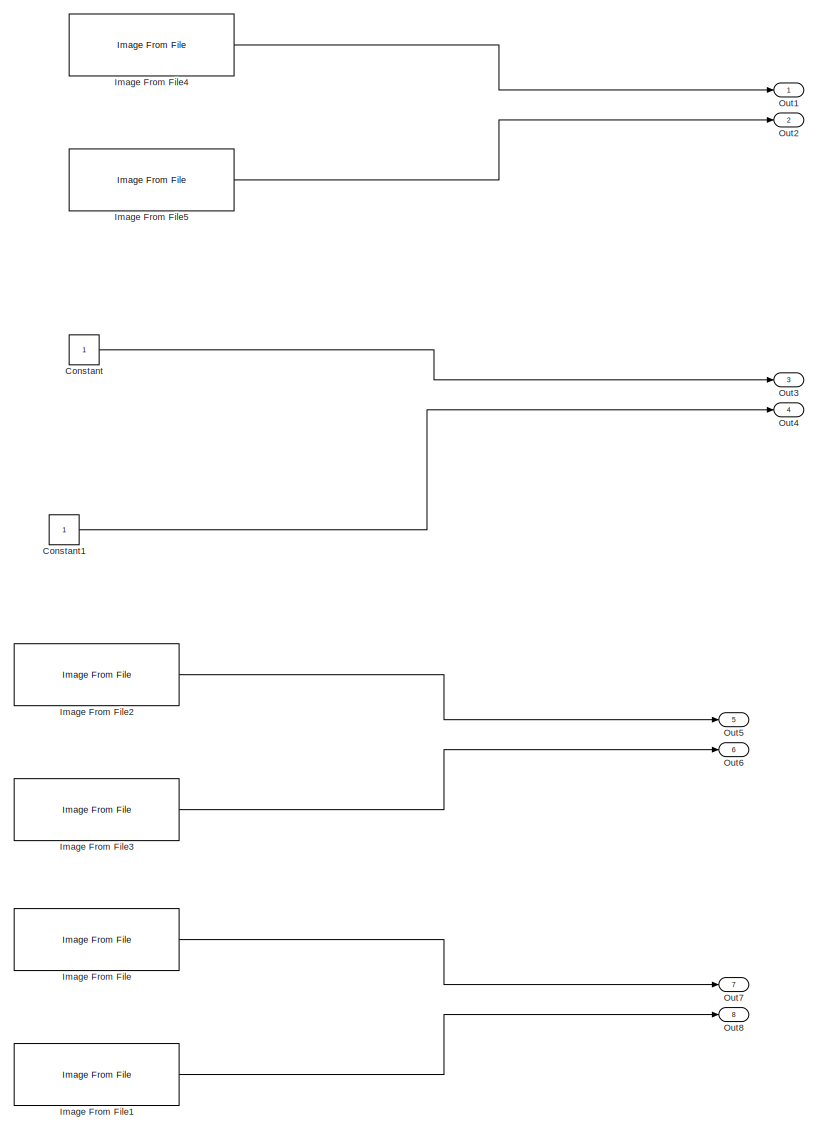
[diagram: Subsystem9/Subsystem11 - part 1/2, full width, top band]
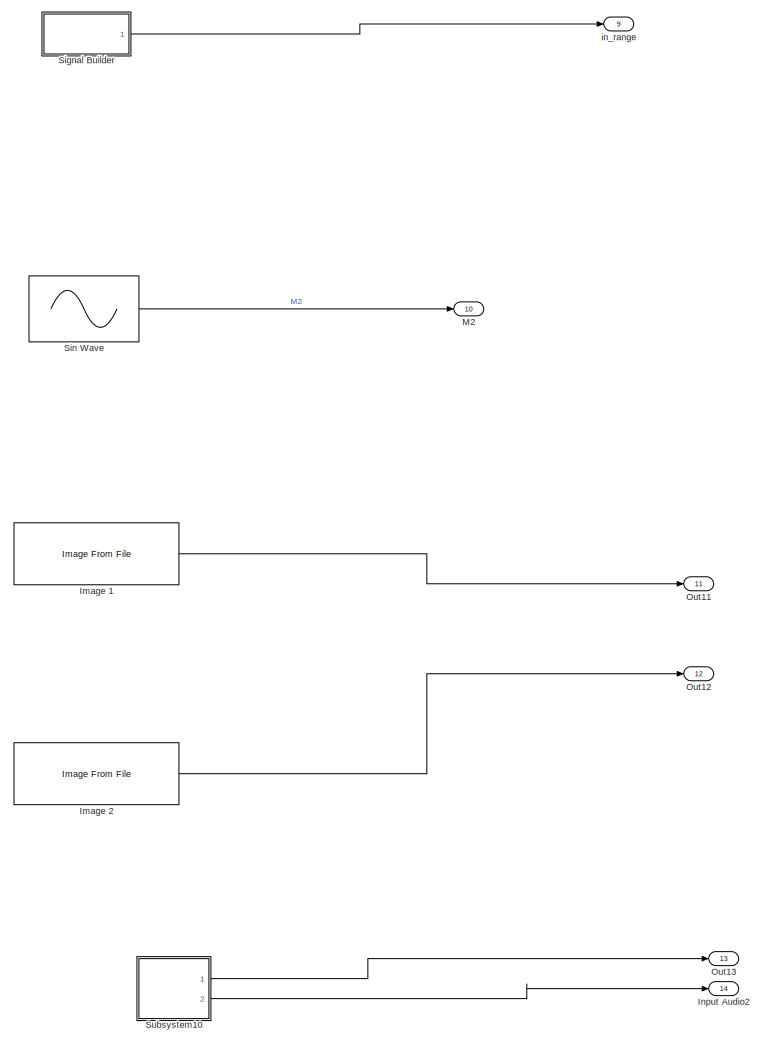
[diagram: Subsystem9/Subsystem11 - part 2/2, full width, bottom band]
BLOCK [SubSystem] Subsystem9/Subsystem11
  Ports = [0, 14]
  RequestExecContextInheritance = off
BLOCK [Constant] Subsystem9/Subsystem11/Constant
BLOCK [Constant] Subsystem9/Subsystem11/Constant1
BLOCK [Reference] Subsystem9/Subsystem11/Image 1  REF=visionsources/Image From File
  Ports = [0, 1]
  SourceBlock = visionsources/Image From File
  SourceProductBaseCode = VP
  SourceType = Image From File
  Tag = vipblks_nd
BLOCK [Reference] Subsystem9/Subsystem11/Image 2  REF=visionsources/Image From File
  Ports = [0, 1]
  SourceBlock = visionsources/Image From File
  SourceProductBaseCode = VP
  SourceType = Image From File
  Tag = vipblks_nd
BLOCK [Reference] Subsystem9/Subsystem11/Image From File  REF=visionsources/Image From File
  Ports = [0, 1]
  SourceBlock = visionsources/Image From File
  SourceProductBaseCode = VP
  SourceType = Image From File
  Tag = vipblks_nd
BLOCK [Reference] Subsystem9/Subsystem11/Image From File1  REF=visionsources/Image From File
  Ports = [0, 1]
  SourceBlock = visionsources/Image From File
  SourceProductBaseCode = VP
  SourceType = Image From File
  Tag = vipblks_nd
BLOCK [Reference] Subsystem9/Subsystem11/Image From File2  REF=visionsources/Image From File
  Ports = [0, 1]
  SourceBlock = visionsources/Image From File
  SourceProductBaseCode = VP
  SourceType = Image From File
  Tag = vipblks_nd
BLOCK [Reference] Subsystem9/Subsystem11/Image From File3  REF=visionsources/Image From File
  Ports = [0, 1]
  SourceBlock = visionsources/Image From File
  SourceProductBaseCode = VP
  SourceType = Image From File
  Tag = vipblks_nd
BLOCK [Reference] Subsystem9/Subsystem11/Image From File4  REF=visionsources/Image From File
  Ports = [0, 1]
  SourceBlock = visionsources/Image From File
  SourceProductBaseCode = VP
  SourceType = Image From File
  Tag = vipblks_nd
BLOCK [Reference] Subsystem9/Subsystem11/Image From File5  REF=visionsources/Image From File
  Ports = [0, 1]
  SourceBlock = visionsources/Image From File
  SourceProductBaseCode = VP
  SourceType = Image From File
  Tag = vipblks_nd
BLOCK [Outport] Subsystem9/Subsystem11/Input Audio2
  Port = 14
BLOCK [Outport] Subsystem9/Subsystem11/M2
  Port = 10
BLOCK [Outport] Subsystem9/Subsystem11/Out1
BLOCK [Outport] Subsystem9/Subsystem11/Out11
  Port = 11
BLOCK [Outport] Subsystem9/Subsystem11/Out12
  Port = 12
BLOCK [Outport] Subsystem9/Subsystem11/Out13
  Port = 13
BLOCK [Outport] Subsystem9/Subsystem11/Out2
  Port = 2
BLOCK [Outport] Subsystem9/Subsystem11/Out3
  Port = 3
BLOCK [Outport] Subsystem9/Subsystem11/Out4
  Port = 4
BLOCK [Outport] Subsystem9/Subsystem11/Out5
  Port = 5
BLOCK [Outport] Subsystem9/Subsystem11/Out6
  Port = 6
BLOCK [Outport] Subsystem9/Subsystem11/Out7
  Port = 7
BLOCK [Outport] Subsystem9/Subsystem11/Out8
  Port = 8
BLOCK [SubSystem] Subsystem9/Subsystem11/Signal Builder
  ClipboardFcn = sigbuilder_block('clipboard');
  CloseFcn = sigbuilder_block('close');
  ContinueFcn = sigbuilder_block('continue');
  CopyFcn = sigbuilder_block('copy');
  DeleteFcn = sigbuilder_block('delete');
  LoadFcn = sigbuilder_block('load');
  MaskHideContents = on
  ModelCloseFcn = sigbuilder_block('modelClose');
  NameChangeFcn = sigbuilder_block('namechange');
  OpenFcn = sigbuilder_block('open',[437.6 199.2 550.4 400 ]);
  PauseFcn = sigbuilder_block('pause');
  Ports = [0, 1]
  PreSaveFcn = sigbuilder_block('preSave');
  RequestExecContextInheritance = off
  StartFcn = sigbuilder_block('start');
  StopFcn = sigbuilder_block('stop');
  Tag = STV Subsys
BLOCK [Demux] Subsystem9/Subsystem11/Signal Builder/Demux
  DisplayOption = none
  Outputs = 1
  Ports = [1, 1]
  Tag = STV Demux
BLOCK [FromWorkspace] Subsystem9/Subsystem11/Signal Builder/FromWs
  Tag = STV FromWs
  VariableName = tuvar
BLOCK [Outport] Subsystem9/Subsystem11/Signal Builder/in_range
  Tag = STV Outport
BLOCK [Sin] Subsystem9/Subsystem11/Sin Wave
  Frequency = 4
  Ports = [0, 1]
  SampleTime = 1/1000
BLOCK [SubSystem] Subsystem9/Subsystem11/Subsystem10
  Ports = [0, 2]
  RequestExecContextInheritance = off
BLOCK [Reference] Subsystem9/Subsystem11/Subsystem10/Hindi_Song  REF=dspvision/From Multimedia File
  Ports = [0, 1]
  SourceBlock = dspvision/From Multimedia File
  SourceProductBaseCode = DS,HW,VP
  SourceType = From Multimedia File
BLOCK [Outport] Subsystem9/Subsystem11/Subsystem10/Input Audio2
  Port = 2
BLOCK [Outport] Subsystem9/Subsystem11/Subsystem10/Out1
BLOCK [Reference] Subsystem9/Subsystem11/Subsystem10/Telugu_Song  REF=dspvision/From Multimedia File
  Ports = [0, 1]
  SourceBlock = dspvision/From Multimedia File
  SourceProductBaseCode = DS,HW,VP
  SourceType = From Multimedia File
BLOCK [Outport] Subsystem9/Subsystem11/in_range
  Port = 9
BLOCK [SubSystem] Subsystem9/Subsystem8
  Ports = [1, 5]
  RequestExecContextInheritance = off
BLOCK [SignalGenerator] Subsystem9/Subsystem8/ 
  Amplitude = 100
  Frequency = 2*pi*25
  Ports = [0, 1]
  Units = rad/sec
BLOCK [Outport] Subsystem9/Subsystem8/Carrier signal
BLOCK [Outport] Subsystem9/Subsystem8/Carrier signal1
  Port = 2
BLOCK [SignalGenerator] Subsystem9/Subsystem8/Message Signal Generator
  Frequency = 2*pi
  Ports = [0, 1]
  Units = rad/sec
BLOCK [Inport] Subsystem9/Subsystem8/Message signal
BLOCK [Outport] Subsystem9/Subsystem8/Message signal1
  Port = 4
BLOCK [Constant] Subsystem9/Subsystem8/Offset constant
BLOCK [Outport] Subsystem9/Subsystem8/Out5
  Port = 5
BLOCK [Outport] Subsystem9/Subsystem8/Output
  Port = 3
BLOCK [Outport] Subsystem9/in_range
  Port = 9
ANNOTATION (root): GROUP K
ANNOTATION (root): INTGERATED MODEL
ANNOTATION (root): INPUTS AUDIO SIGNAL SIGNAL GENERATED USING THE SIGNAL GENERATOR PICTURE FILE
ANNOTATION (root): OUTPUT DISPLAY TIME SCOPE SPECTRUM ANALYZER
ANNOTATION (root): INPUT BLOCK
ANNOTATION (root): PROJECTS COMMUNICATION PROJECTS: 1. AMPLITUDE MODULATION - Yogesh S.V 2. FM MODULATION AND DEMODULATION - Rajeev Ranjan CV PROJECTS: 1. Add two images and make an another image - P.Guru Teja Reddy 2. Image Processing: Differences Detection - Raja Sekhar 3. Face Recognition - Sudheera Dasari 4. Audio Amplifier - Uppala Goutham 5. Iris Recognition - Anushi Chauhan 6. Hair Health Checker - Sakshi Sin...<+124ch>
ANNOTATION (root): OUTPUT BLOCK
ANNOTATION Subsystem8: Goutam - audio comaprison system
ANNOTATION Subsystem8: Raj - image difference detection sys
ANNOTATION Subsystem8: Aman - background removal
ANNOTATION Subsystem8: RAJEEV RANJAN - FREQUENCY MODULATION - DEMODULATION
ANNOTATION Subsystem8: Riya - car no plate detection
ANNOTATION Subsystem8: anushi - irish recognition system
ANNOTATION Subsystem8: sakshi - Hair health detection
ANNOTATION Subsystem8: sudhera - face recognition sys
ANNOTATION Subsystem8/Subsystem: Audio Amplifier and Comparision
ANNOTATION Subsystem8/Subsystem: Input_Audio1
ANNOTATION Subsystem8/Subsystem1/Demodulation: Demodulation Subsystem
ANNOTATION Subsystem8/Subsystem1/Modulation: Modulation
ANNOTATION Subsystem8/Subsystem3/Subsystem(Indirect FM) : Gain1
ANNOTATION Subsystem8/Subsystem3/Subsystem(Indirect FM) : Sum
ANNOTATION Subsystem9/Subsystem8: Message signal
LINE Subsystem/In10:1 -> Subsystem/Subsystem10:14
LINE Subsystem/In11:1 -> Subsystem/Subsystem10:8
NET Subsystem/In12:1 -> Subsystem/Subsystem10:10, Subsystem/Subsystem10:9
LINE Subsystem/In14:1 -> Subsystem/Scope:3
LINE Subsystem/In15:1 -> Subsystem/Scope:4
LINE Subsystem/In16:1 -> Subsystem/Scope:1
LINE Subsystem/In17:1 -> Subsystem/Scope:2
LINE Subsystem/In1:1 -> Subsystem/Subsystem10:1
LINE Subsystem/In2:1 -> Subsystem/Subsystem10:2
LINE Subsystem/In3:1 -> Subsystem/Subsystem10:3
LINE Subsystem/In4:1 -> Subsystem/Subsystem10:4
LINE Subsystem/In5:1 -> Subsystem/Subsystem10:6
LINE Subsystem/In6:1 -> Subsystem/Subsystem10:5
LINE Subsystem/In7:1 -> Subsystem/Subsystem10:11
LINE Subsystem/In8:1 -> Subsystem/Subsystem10:12
LINE Subsystem/In9:1 -> Subsystem/Subsystem10:13
LINE Subsystem/M2:1 -> Subsystem/Subsystem10:7
LINE Subsystem/Subsystem10/In10:1 -> Subsystem/Subsystem10/Subsystem1:3
LINE Subsystem/Subsystem10/In11:1 -> Subsystem/Subsystem10/Subsystem1:4
LINE Subsystem/Subsystem10/In12:1 -> Subsystem/Subsystem10/Subsystem1:6
LINE Subsystem/Subsystem10/In13:1 -> Subsystem/Subsystem10/Video Viewer:1
LINE Subsystem/Subsystem10/In14:1 -> Subsystem/Subsystem10/Subsystem9:1
LINE Subsystem/Subsystem10/In1:1 -> Subsystem/Subsystem10/Display3:1
LINE Subsystem/Subsystem10/In2:1 -> Subsystem/Subsystem10/Display:1
LINE Subsystem/Subsystem10/In3:1 -> Subsystem/Subsystem10/Display2:1
LINE Subsystem/Subsystem10/In4:1 -> Subsystem/Subsystem10/Display1:1
LINE Subsystem/Subsystem10/In5:1 -> Subsystem/Subsystem10/Subsystem8:1
LINE Subsystem/Subsystem10/In6:1 -> Subsystem/Subsystem10/Subsystem8:2
LINE Subsystem/Subsystem10/In8:1 -> Subsystem/Subsystem10/Subsystem1:2
LINE Subsystem/Subsystem10/In9:1 -> Subsystem/Subsystem10/Subsystem1:5
LINE Subsystem/Subsystem10/M2:1 -> Subsystem/Subsystem10/Subsystem1:1
NET Subsystem/Subsystem10/Subsystem1/In2:1 -> Subsystem/Subsystem10/Subsystem1/Frequency Modulation :2, Subsystem/Subsystem10/Subsystem1/Spectrum Analyzer (modulation):2
LINE Subsystem/Subsystem10/Subsystem1/In3:1 -> Subsystem/Subsystem10/Subsystem1/                       FM Demodulation (Discriminator) :2
NET Subsystem/Subsystem10/Subsystem1/In4:1 -> Subsystem/Subsystem10/Subsystem1/                       FM Demodulation (Discriminator) :3, Subsystem/Subsystem10/Subsystem1/Spectrum Analyzer(demodulation) :1
LINE Subsystem/Subsystem10/Subsystem1/In5:1 -> Subsystem/Subsystem10/Subsystem1/FM Demodulation using PLL:2
LINE Subsystem/Subsystem10/Subsystem1/In6:1 -> Subsystem/Subsystem10/Subsystem1/FM Demodulation using PLL:3
NET Subsystem/Subsystem10/Subsystem1/M2:1 -> Subsystem/Subsystem10/Subsystem1/                       FM Demodulation (Discriminator) :1, Subsystem/Subsystem10/Subsystem1/FM Demodulation using PLL:1, Subsystem/Subsystem10/Subsystem1/Frequency Modulation :1, Subsystem/Subsystem10/Subsystem1/Spectrum Analyzer (modulation):1
LINE Subsystem/Subsystem10/Subsystem8/In1:1 -> Subsystem/Subsystem10/Subsystem8/Scope:1
NET Subsystem/Subsystem10/Subsystem8/In2:1 -> Subsystem/Subsystem10/Subsystem8/Display:1, Subsystem/Subsystem10/Subsystem8/Scope:2
NET Subsystem/Subsystem10/Subsystem9/In1:1 -> Subsystem/Subsystem10/Subsystem9/ Audio file Recorder:1, Subsystem/Subsystem10/Subsystem9/Audio Output:1
LINE Subsystem/Subsystem10/Subsystem9:1 -> Subsystem/Subsystem10/Display4:1
LINE Subsystem8/Carrier signal:1 -> Subsystem8/Subsystem1:1
LINE Subsystem8/DC offset:1 -> Subsystem8/Subsystem1:3
LINE Subsystem8/IMAGE1:1 -> Subsystem8/Matlab Function:1
LINE Subsystem8/IMAGE2:1 -> Subsystem8/Matlab Function:2
LINE Subsystem8/In17:1 -> Subsystem8/Carrier signal1:1
LINE Subsystem8/In18:1 -> Subsystem8/Output:1
LINE Subsystem8/In2:1 -> Subsystem8/Subsystem2:2
LINE Subsystem8/In3:1 -> Subsystem8/Subsystem3:2
LINE Subsystem8/Input Audio2:1 -> Subsystem8/Subsystem:2
LINE Subsystem8/Input_Audio1:1 -> Subsystem8/Subsystem:1
LINE Subsystem8/M2:1 -> Subsystem8/Subsystem3:1
LINE Subsystem8/Matlab Function/IMAGE1:1 -> Subsystem8/Matlab Function/MATLAB Function:1
LINE Subsystem8/Matlab Function/IMAGE2:1 -> Subsystem8/Matlab Function/MATLAB Function:2
LINE Subsystem8/Matlab Function/MATLAB Function:1 -> Subsystem8/Matlab Function/OUTPUT:1
LINE Subsystem8/Matlab Function:1 -> Subsystem8/OUTPUT:1
LINE Subsystem8/Message signal:1 -> Subsystem8/Subsystem1:2
LINE Subsystem8/Subsystem/ Manual Switch:1 -> Subsystem8/Subsystem/Out1:1
LINE Subsystem8/Subsystem/Enhanced_Hindi_song/Filter /Biquad Filter1:1 -> Subsystem8/Subsystem/Enhanced_Hindi_song/Filter /Out1:1
LINE Subsystem8/Subsystem/Enhanced_Hindi_song/Filter /Biquad Filter:1 -> Subsystem8/Subsystem/Enhanced_Hindi_song/Filter /Biquad Filter1:1
LINE Subsystem8/Subsystem/Enhanced_Hindi_song/Filter /In1:1 -> Subsystem8/Subsystem/Enhanced_Hindi_song/Filter /Biquad Filter:1
LINE Subsystem8/Subsystem/Enhanced_Hindi_song/Filter :1 -> Subsystem8/Subsystem/Enhanced_Hindi_song/Reverberator2:1
LINE Subsystem8/Subsystem/Enhanced_Hindi_song/Input_Audio2:1 -> Subsystem8/Subsystem/Enhanced_Hindi_song/Filter :1
LINE Subsystem8/Subsystem/Enhanced_Hindi_song/Reverberator2:1 -> Subsystem8/Subsystem/Enhanced_Hindi_song/Signal with Reverberation2:1
NET Subsystem8/Subsystem/Enhanced_Hindi_song:1 -> Subsystem8/Subsystem/ Manual Switch:2, Subsystem8/Subsystem/Time Scope:2
LINE Subsystem8/Subsystem/Enhanced_Telugu_song/Filter /Biquad Filter1:1 -> Subsystem8/Subsystem/Enhanced_Telugu_song/Filter /Out1:1
LINE Subsystem8/Subsystem/Enhanced_Telugu_song/Filter /Biquad Filter:1 -> Subsystem8/Subsystem/Enhanced_Telugu_song/Filter /Biquad Filter1:1
LINE Subsystem8/Subsystem/Enhanced_Telugu_song/Filter /In1:1 -> Subsystem8/Subsystem/Enhanced_Telugu_song/Filter /Biquad Filter:1
LINE Subsystem8/Subsystem/Enhanced_Telugu_song/Filter :1 -> Subsystem8/Subsystem/Enhanced_Telugu_song/Reverberator2:1
LINE Subsystem8/Subsystem/Enhanced_Telugu_song/Input_Audio1:1 -> Subsystem8/Subsystem/Enhanced_Telugu_song/Filter :1
LINE Subsystem8/Subsystem/Enhanced_Telugu_song/Reverberator2:1 -> Subsystem8/Subsystem/Enhanced_Telugu_song/Signal with Reverberation1:1
NET Subsystem8/Subsystem/Enhanced_Telugu_song:1 -> Subsystem8/Subsystem/ Manual Switch:1, Subsystem8/Subsystem/Time Scope:1
LINE Subsystem8/Subsystem/Input Audio2:1 -> Subsystem8/Subsystem/Enhanced_Hindi_song:1
LINE Subsystem8/Subsystem/Input_Audio1:1 -> Subsystem8/Subsystem/Enhanced_Telugu_song:1
NET Subsystem8/Subsystem1/Carrier signal:1 -> Subsystem8/Subsystem1/Demodulation:1, Subsystem8/Subsystem1/Modulation:1
LINE Subsystem8/Subsystem1/DC offset:1 -> Subsystem8/Subsystem1/Modulation:3
LINE Subsystem8/Subsystem1/Demodulation/Carrier signal:1 -> Subsystem8/Subsystem1/Demodulation/Demodulation:1
LINE Subsystem8/Subsystem1/Demodulation/Demodulation:1 -> Subsystem8/Subsystem1/Demodulation/Transfer Fcn:1
LINE Subsystem8/Subsystem1/Demodulation/Modulated signal:1 -> Subsystem8/Subsystem1/Demodulation/Demodulation:2
LINE Subsystem8/Subsystem1/Demodulation/Transfer Fcn:1 -> Subsystem8/Subsystem1/Demodulation/Demodulated signal:1
LINE Subsystem8/Subsystem1/Demodulation:1 -> Subsystem8/Subsystem1/Demodulated signal:1
LINE Subsystem8/Subsystem1/Message signal:1 -> Subsystem8/Subsystem1/Modulation:2
LINE Subsystem8/Subsystem1/Modulation/Carrier signal:1 -> Subsystem8/Subsystem1/Modulation/modulation1:1
LINE Subsystem8/Subsystem1/Modulation/DC offset:1 -> Subsystem8/Subsystem1/Modulation/Offset addition:2
LINE Subsystem8/Subsystem1/Modulation/Message signal:1 -> Subsystem8/Subsystem1/Modulation/Offset addition:1
LINE Subsystem8/Subsystem1/Modulation/Offset addition:1 -> Subsystem8/Subsystem1/Modulation/modulation1:2
LINE Subsystem8/Subsystem1/Modulation/modulation1:1 -> Subsystem8/Subsystem1/Modulation/Modulated signal:1
NET Subsystem8/Subsystem1/Modulation:1 -> Subsystem8/Subsystem1/Demodulation:2, Subsystem8/Subsystem1/Modulated signal:1
LINE Subsystem8/Subsystem1:1 -> Subsystem8/Modulated signal:1
LINE Subsystem8/Subsystem1:2 -> Subsystem8/Demodulated signal:1
LINE Subsystem8/Subsystem2/Compare To Constant1:1 -> Subsystem8/Subsystem2/Switch:2
LINE Subsystem8/Subsystem2/Compare To Constant2:1 -> Subsystem8/Subsystem2/Switch5:2
LINE Subsystem8/Subsystem2/Compare To Constant3:1 -> Subsystem8/Subsystem2/Switch1:2
LINE Subsystem8/Subsystem2/Compare To Constant4:1 -> Subsystem8/Subsystem2/Switch3:2
LINE Subsystem8/Subsystem2/Compare To Constant5:1 -> Subsystem8/Subsystem2/Switch2:2
LINE Subsystem8/Subsystem2/Compare To Constant:1 -> Subsystem8/Subsystem2/Switch4:2
LINE Subsystem8/Subsystem2/Constant1:1 -> Subsystem8/Subsystem2/Switch4:1
LINE Subsystem8/Subsystem2/Constant2:1 -> Subsystem8/Subsystem2/Switch:1
LINE Subsystem8/Subsystem2/Constant3:1 -> Subsystem8/Subsystem2/Switch5:1
LINE Subsystem8/Subsystem2/Constant4:1 -> Subsystem8/Subsystem2/Switch1:1
LINE Subsystem8/Subsystem2/Constant5:1 -> Subsystem8/Subsystem2/Switch3:1
LINE Subsystem8/Subsystem2/Constant6:1 -> Subsystem8/Subsystem2/Switch2:1
LINE Subsystem8/Subsystem2/In2:1 -> Subsystem8/Subsystem2/Switch2:3
LINE Subsystem8/Subsystem2/Switch1:1 -> Subsystem8/Subsystem2/Switch5:3
LINE Subsystem8/Subsystem2/Switch2:1 -> Subsystem8/Subsystem2/Switch3:3
LINE Subsystem8/Subsystem2/Switch3:1 -> Subsystem8/Subsystem2/Switch1:3
LINE Subsystem8/Subsystem2/Switch4:1 -> Subsystem8/Subsystem2/Out1:1
LINE Subsystem8/Subsystem2/Switch5:1 -> Subsystem8/Subsystem2/Switch:3
LINE Subsystem8/Subsystem2/Switch:1 -> Subsystem8/Subsystem2/Switch4:3
NET Subsystem8/Subsystem2/u:1 -> Subsystem8/Subsystem2/Compare To Constant1:1, Subsystem8/Subsystem2/Compare To Constant2:1, Subsystem8/Subsystem2/Compare To Constant3:1, Subsystem8/Subsystem2/Compare To Constant4:1, Subsystem8/Subsystem2/Compare To Constant5:1, Subsystem8/Subsystem2/Compare To Constant:1
LINE Subsystem8/Subsystem2:1 -> Subsystem8/Out5:1
LINE Subsystem8/Subsystem3/In2:1 -> Subsystem8/Subsystem3/Subsystem2:1
LINE Subsystem8/Subsystem3/M2:1 -> Subsystem8/Subsystem3/Subsystem(Indirect FM) :1
LINE Subsystem8/Subsystem3/Subsystem(Indirect FM) /Discrete-Time Integrator :1 -> Subsystem8/Subsystem3/Subsystem(Indirect FM) /Trignometric Function:1
LINE Subsystem8/Subsystem3/Subsystem(Indirect FM) /Gain1:1 -> Subsystem8/Subsystem3/Subsystem(Indirect FM) /Discrete-Time Integrator :1
LINE Subsystem8/Subsystem3/Subsystem(Indirect FM) /Gain2 :1 -> Subsystem8/Subsystem3/Subsystem(Indirect FM) /Out1:1
LINE Subsystem8/Subsystem3/Subsystem(Indirect FM) /In1:1 -> Subsystem8/Subsystem3/Subsystem(Indirect FM) /Kf Gain:1
LINE Subsystem8/Subsystem3/Subsystem(Indirect FM) /Kf Gain:1 -> Subsystem8/Subsystem3/Subsystem(Indirect FM) /Sum:1
LINE Subsystem8/Subsystem3/Subsystem(Indirect FM) /Sum:1 -> Subsystem8/Subsystem3/Subsystem(Indirect FM) /Gain1:1
LINE Subsystem8/Subsystem3/Subsystem(Indirect FM) /Trignometric Function:1 -> Subsystem8/Subsystem3/Subsystem(Indirect FM) /Gain2 :1
LINE Subsystem8/Subsystem3/Subsystem(Indirect FM) /fc constant:1 -> Subsystem8/Subsystem3/Subsystem(Indirect FM) /Sum:2
LINE Subsystem8/Subsystem3/Subsystem(Indirect FM) :1 -> Subsystem8/Subsystem3/Out1:1
LINE Subsystem8/Subsystem3/Subsystem2/FM Demodulator Passband :1 -> Subsystem8/Subsystem3/Subsystem2/Out1:1
NET Subsystem8/Subsystem3/Subsystem2/In1:1 -> Subsystem8/Subsystem3/Subsystem2/FM Demodulator Passband :1, Subsystem8/Subsystem3/Subsystem2/Subsystem(Phase lock loop) :1
NET Subsystem8/Subsystem3/Subsystem2/Subsystem(Phase lock loop) /Analog Filter Design :1 -> Subsystem8/Subsystem3/Subsystem2/Subsystem(Phase lock loop) /Continuous-Time VCO :1, Subsystem8/Subsystem3/Subsystem2/Subsystem(Phase lock loop) /Gain3 :1
LINE Subsystem8/Subsystem3/Subsystem2/Subsystem(Phase lock loop) /Continuous-Time VCO :1 -> Subsystem8/Subsystem3/Subsystem2/Subsystem(Phase lock loop) /MatrixMultiply:2
LINE Subsystem8/Subsystem3/Subsystem2/Subsystem(Phase lock loop) /Gain3 :1 -> Subsystem8/Subsystem3/Subsystem2/Subsystem(Phase lock loop) /Out1:1
LINE Subsystem8/Subsystem3/Subsystem2/Subsystem(Phase lock loop) /In1:1 -> Subsystem8/Subsystem3/Subsystem2/Subsystem(Phase lock loop) /MatrixMultiply:1
LINE Subsystem8/Subsystem3/Subsystem2/Subsystem(Phase lock loop) /MatrixMultiply:1 -> Subsystem8/Subsystem3/Subsystem2/Subsystem(Phase lock loop) /Analog Filter Design :1
LINE Subsystem8/Subsystem3/Subsystem2/Subsystem(Phase lock loop) :1 -> Subsystem8/Subsystem3/Subsystem2/Out2:1
LINE Subsystem8/Subsystem3/Subsystem2:1 -> Subsystem8/Subsystem3/Out2:1
LINE Subsystem8/Subsystem3/Subsystem2:2 -> Subsystem8/Subsystem3/Out3:1
LINE Subsystem8/Subsystem3:1 -> Subsystem8/Out10:1
LINE Subsystem8/Subsystem3:2 -> Subsystem8/Out6:1
LINE Subsystem8/Subsystem3:3 -> Subsystem8/Out7:1
LINE Subsystem8/Subsystem4/MATLAB Function1:1 -> Subsystem8/Subsystem4/Subsystem4:2
LINE Subsystem8/Subsystem4/MATLAB Function:1 -> Subsystem8/Subsystem4/Subsystem4:1
LINE Subsystem8/Subsystem4/Subsystem4/In2:1 -> Subsystem8/Subsystem4/Subsystem4/MATLAB Function:2
LINE Subsystem8/Subsystem4/Subsystem4/MATLAB Function:1 -> Subsystem8/Subsystem4/Subsystem4/Switch:2
LINE Subsystem8/Subsystem4/Subsystem4/String Constant1:1 -> Subsystem8/Subsystem4/Subsystem4/Switch:3
LINE Subsystem8/Subsystem4/Subsystem4/String Constant:1 -> Subsystem8/Subsystem4/Subsystem4/Switch:1
LINE Subsystem8/Subsystem4/Subsystem4/Switch:1 -> Subsystem8/Subsystem4/Subsystem4/Out1:1
LINE Subsystem8/Subsystem4/Subsystem4/y:1 -> Subsystem8/Subsystem4/Subsystem4/MATLAB Function:1
LINE Subsystem8/Subsystem4/Subsystem4:1 -> Subsystem8/Subsystem4/Out1:1
LINE Subsystem8/Subsystem4/h2:1 -> Subsystem8/Subsystem4/MATLAB Function1:1
LINE Subsystem8/Subsystem4/h:1 -> Subsystem8/Subsystem4/MATLAB Function:1
LINE Subsystem8/Subsystem4:1 -> Subsystem8/Out3:1
LINE Subsystem8/Subsystem5/MATLAB Function1:1 -> Subsystem8/Subsystem5/Subsystem4:2
LINE Subsystem8/Subsystem5/MATLAB Function:1 -> Subsystem8/Subsystem5/Subsystem4:1
LINE Subsystem8/Subsystem5/Subsystem4/In2:1 -> Subsystem8/Subsystem5/Subsystem4/MATLAB Function:2
LINE Subsystem8/Subsystem5/Subsystem4/MATLAB Function:1 -> Subsystem8/Subsystem5/Subsystem4/Switch:2
LINE Subsystem8/Subsystem5/Subsystem4/String Constant1:1 -> Subsystem8/Subsystem5/Subsystem4/Switch:3
LINE Subsystem8/Subsystem5/Subsystem4/String Constant:1 -> Subsystem8/Subsystem5/Subsystem4/Switch:1
LINE Subsystem8/Subsystem5/Subsystem4/Switch:1 -> Subsystem8/Subsystem5/Subsystem4/Out1:1
LINE Subsystem8/Subsystem5/Subsystem4/y:1 -> Subsystem8/Subsystem5/Subsystem4/MATLAB Function:1
LINE Subsystem8/Subsystem5/Subsystem4:1 -> Subsystem8/Subsystem5/Out1:1
LINE Subsystem8/Subsystem5/h2:1 -> Subsystem8/Subsystem5/MATLAB Function1:1
LINE Subsystem8/Subsystem5/h:1 -> Subsystem8/Subsystem5/MATLAB Function:1
LINE Subsystem8/Subsystem5:1 -> Subsystem8/Out4:1
LINE Subsystem8/Subsystem6/MATLAB Function:1 -> Subsystem8/Subsystem6/Switch:2
LINE Subsystem8/Subsystem6/String Constant1:1 -> Subsystem8/Subsystem6/Switch:1
LINE Subsystem8/Subsystem6/String Constant:1 -> Subsystem8/Subsystem6/Switch:3
LINE Subsystem8/Subsystem6/Switch:1 -> Subsystem8/Subsystem6/Out1:1
LINE Subsystem8/Subsystem6/x:1 -> Subsystem8/Subsystem6/MATLAB Function:1
LINE Subsystem8/Subsystem6/y:1 -> Subsystem8/Subsystem6/MATLAB Function:2
LINE Subsystem8/Subsystem6:1 -> Subsystem8/Out2:1
LINE Subsystem8/Subsystem7/MATLAB Function1:1 -> Subsystem8/Subsystem7/Subsystem4:2
LINE Subsystem8/Subsystem7/MATLAB Function:1 -> Subsystem8/Subsystem7/Subsystem4:1
LINE Subsystem8/Subsystem7/Subsystem4/In2:1 -> Subsystem8/Subsystem7/Subsystem4/MATLAB Function:2
LINE Subsystem8/Subsystem7/Subsystem4/MATLAB Function:1 -> Subsystem8/Subsystem7/Subsystem4/Switch:2
LINE Subsystem8/Subsystem7/Subsystem4/String Constant1:1 -> Subsystem8/Subsystem7/Subsystem4/Switch:3
LINE Subsystem8/Subsystem7/Subsystem4/String Constant:1 -> Subsystem8/Subsystem7/Subsystem4/Switch:1
LINE Subsystem8/Subsystem7/Subsystem4/Switch:1 -> Subsystem8/Subsystem7/Subsystem4/Out1:1
LINE Subsystem8/Subsystem7/Subsystem4/y:1 -> Subsystem8/Subsystem7/Subsystem4/MATLAB Function:1
LINE Subsystem8/Subsystem7/Subsystem4:1 -> Subsystem8/Subsystem7/Out1:1
LINE Subsystem8/Subsystem7/h2:1 -> Subsystem8/Subsystem7/MATLAB Function1:1
LINE Subsystem8/Subsystem7/h:1 -> Subsystem8/Subsystem7/MATLAB Function:1
LINE Subsystem8/Subsystem7:1 -> Subsystem8/Out1:1
LINE Subsystem8/Subsystem:1 -> Subsystem8/Out9:1
LINE Subsystem8/h1:1 -> Subsystem8/Subsystem4:1
LINE Subsystem8/h2:1 -> Subsystem8/Subsystem7:2
LINE Subsystem8/h3:1 -> Subsystem8/Subsystem4:2
LINE Subsystem8/h4:1 -> Subsystem8/Subsystem5:1
LINE Subsystem8/h5:1 -> Subsystem8/Subsystem5:2
LINE Subsystem8/h:1 -> Subsystem8/Subsystem7:1
LINE Subsystem8/u:1 -> Subsystem8/Subsystem2:1
LINE Subsystem8/x:1 -> Subsystem8/Subsystem6:1
LINE Subsystem8/y:1 -> Subsystem8/Subsystem6:2
LINE Subsystem8:1 -> Subsystem:1
NET Subsystem8:10 -> Subsystem8:3, Subsystem:11, Subsystem:12
LINE Subsystem8:13 -> Subsystem:14
LINE Subsystem8:14 -> Subsystem:15
LINE Subsystem8:2 -> Subsystem:2
LINE Subsystem8:3 -> Subsystem:3
LINE Subsystem8:4 -> Subsystem:4
LINE Subsystem8:5 -> Subsystem:5
LINE Subsystem8:6 -> Subsystem:7
LINE Subsystem8:7 -> Subsystem:8
LINE Subsystem8:8 -> Subsystem:9
LINE Subsystem8:9 -> Subsystem:10
LINE Subsystem9/Message signal:1 -> Subsystem9/Subsystem8:1
LINE Subsystem9/Subsystem11/Constant1:1 -> Subsystem9/Subsystem11/Out4:1
LINE Subsystem9/Subsystem11/Constant:1 -> Subsystem9/Subsystem11/Out3:1
LINE Subsystem9/Subsystem11/Image 1:1 -> Subsystem9/Subsystem11/Out11:1
LINE Subsystem9/Subsystem11/Image 2:1 -> Subsystem9/Subsystem11/Out12:1
LINE Subsystem9/Subsystem11/Image From File1:1 -> Subsystem9/Subsystem11/Out8:1
LINE Subsystem9/Subsystem11/Image From File2:1 -> Subsystem9/Subsystem11/Out5:1
LINE Subsystem9/Subsystem11/Image From File3:1 -> Subsystem9/Subsystem11/Out6:1
LINE Subsystem9/Subsystem11/Image From File4:1 -> Subsystem9/Subsystem11/Out1:1
LINE Subsystem9/Subsystem11/Image From File5:1 -> Subsystem9/Subsystem11/Out2:1
LINE Subsystem9/Subsystem11/Image From File:1 -> Subsystem9/Subsystem11/Out7:1
LINE Subsystem9/Subsystem11/Signal Builder:1 -> Subsystem9/Subsystem11/in_range:1
LINE Subsystem9/Subsystem11/Sin Wave:1 -> Subsystem9/Subsystem11/M2:1
LINE Subsystem9/Subsystem11/Subsystem10/Hindi_Song:1 -> Subsystem9/Subsystem11/Subsystem10/Input Audio2:1
LINE Subsystem9/Subsystem11/Subsystem10/Telugu_Song:1 -> Subsystem9/Subsystem11/Subsystem10/Out1:1
LINE Subsystem9/Subsystem11/Subsystem10:1 -> Subsystem9/Subsystem11/Out13:1
LINE Subsystem9/Subsystem11/Subsystem10:2 -> Subsystem9/Subsystem11/Input Audio2:1
LINE Subsystem9/Subsystem11:1 -> Subsystem9/Out1:1
LINE Subsystem9/Subsystem11:10 -> Subsystem9/M2:1
LINE Subsystem9/Subsystem11:11 -> Subsystem9/Out11:1
LINE Subsystem9/Subsystem11:12 -> Subsystem9/Out12:1
LINE Subsystem9/Subsystem11:13 -> Subsystem9/Out13:1
LINE Subsystem9/Subsystem11:14 -> Subsystem9/Input Audio2:1
LINE Subsystem9/Subsystem11:2 -> Subsystem9/Out2:1
LINE Subsystem9/Subsystem11:3 -> Subsystem9/Out3:1
LINE Subsystem9/Subsystem11:4 -> Subsystem9/Out4:1
LINE Subsystem9/Subsystem11:5 -> Subsystem9/Out5:1
LINE Subsystem9/Subsystem11:6 -> Subsystem9/Out6:1
LINE Subsystem9/Subsystem11:7 -> Subsystem9/Out7:1
LINE Subsystem9/Subsystem11:8 -> Subsystem9/Out8:1
LINE Subsystem9/Subsystem11:9 -> Subsystem9/in_range:1
NET Subsystem9/Subsystem8/ :1 -> Subsystem9/Subsystem8/Carrier signal1:1, Subsystem9/Subsystem8/Carrier signal:1
LINE Subsystem9/Subsystem8/Message Signal Generator:1 -> Subsystem9/Subsystem8/Message signal1:1
LINE Subsystem9/Subsystem8/Message signal:1 -> Subsystem9/Subsystem8/Output:1
LINE Subsystem9/Subsystem8/Offset constant:1 -> Subsystem9/Subsystem8/Out5:1
LINE Subsystem9/Subsystem8:1 -> Subsystem9/Carrier signal:1
LINE Subsystem9/Subsystem8:2 -> Subsystem9/Carrier signal1:1
LINE Subsystem9/Subsystem8:3 -> Subsystem9/Output:1
LINE Subsystem9/Subsystem8:4 -> Subsystem9/Message signal1:1
LINE Subsystem9/Subsystem8:5 -> Subsystem9/Out19:1
LINE Subsystem9:1 -> Subsystem8:5
NET Subsystem9:10 -> Subsystem8:4, Subsystem:13
LINE Subsystem9:11 -> Subsystem8:13
LINE Subsystem9:12 -> Subsystem8:14
LINE Subsystem9:13 -> Subsystem8:15
LINE Subsystem9:14 -> Subsystem8:16
NET Subsystem9:15 -> Subsystem8:20, Subsystem:17
LINE Subsystem9:16 -> Subsystem8:17
LINE Subsystem9:17 -> Subsystem8:18
NET Subsystem9:18 -> Subsystem8:21, Subsystem9:1, Subsystem:16
LINE Subsystem9:19 -> Subsystem8:19
LINE Subsystem9:2 -> Subsystem8:6
LINE Subsystem9:3 -> Subsystem8:7
LINE Subsystem9:4 -> Subsystem8:8
LINE Subsystem9:5 -> Subsystem8:9
LINE Subsystem9:6 -> Subsystem8:10
LINE Subsystem9:7 -> Subsystem8:11
LINE Subsystem9:8 -> Subsystem8:12
NET Subsystem9:9 -> Subsystem8:1, Subsystem:6
note: NET lines group one-source signal fan-out (src -> all destinations, sorted); 1:1 wires keep LINE
CHART Subsystem8/Subsystem5/MATLAB Function states=1 transitions=1
  STATE_LABEL 'eML_blk_kernel()'
  STATE_LABEL "SCRIPT:\nfunction y = fcn(h)\nh = imread('hair22.jpg');\n%imshow(h)\n[count,x] = imhist(h);\nsz = size(h);\nR = h(:,:,1);\n%imshow(R)\n\n%to grayscale\nred=h(:,:,1);\ngreen=h(:,:,2);\nblue=h(:,:,3);\nimage_gray = im2gray(h);\n% figure (1),subplot (3,3,2), imshow(image_gray), title('grayscale');\n\n%tobinary\nlevel = graythresh(image_gray);\nBW = imbinarize (image_gray,level);\n% figure(1),subplot(3,3,3),imshow(BW), ...<+281ch>"  <repeated x3 — deduplicated; at blocks: MATLAB Function>
CHART Subsystem8/Subsystem5/MATLAB Function1 states=1 transitions=1
  STATE_LABEL 'eML_blk_kernel()'
  STATE_LABEL "SCRIPT:\nfunction y = fcn(h2)\nh2 = imread('hair21.jpg');\n%imshow(h2)\nR2 = h2(:,:,1);\n%imshow(R2)\n\n%to grayscale\nred2=h2(:,:,1);\ngreen2=h2(:,:,2);\nblue2=h2(:,:,3);\nimage_gray1 = im2gray(h2);\n%figure (1),subplot (3,3,2), imshow(image_gray1), title('grayscale2');\n\n%tobinary\nlevel2 = graythresh(image_gray1);\nBW2 = imbinarize (image_gray1,level2);\n%figure(1),subplot(3,3,3),imshow(BW2), title('binary2');...<+271ch>"  <repeated x3 — deduplicated; at blocks: MATLAB Function1>
CHART Subsystem8/Subsystem5/Subsystem4/MATLAB Function states=1 transitions=1
  STATE_LABEL 'eML_blk_kernel()'
  STATE_LABEL 'SCRIPT:\nfunction y = fcn(h1, h2)\nif(h1>h2)\n    y=1;\nelse\n    y=0;\nend\n\nend'
CHART Subsystem8/Subsystem4/MATLAB Function states=1 transitions=1
  STATE_LABEL 'eML_blk_kernel()'
CHART Subsystem8/Subsystem4/MATLAB Function1 states=1 transitions=1
  STATE_LABEL 'eML_blk_kernel()'
CHART Subsystem8/Subsystem4/Subsystem4/MATLAB Function states=1 transitions=1
  STATE_LABEL 'eML_blk_kernel()'
  STATE_LABEL 'SCRIPT:\nfunction y = fcn(h1, h2)\nif(h1>h2)\n    y=1;\nelse\n    y=0;\nend\n\nend'
CHART Subsystem8/Subsystem6/MATLAB Function states=1 transitions=1
  STATE_LABEL 'eML_blk_kernel()'
  STATE_LABEL 'SCRIPT:\nfunction z = fcn(x,y)\ng=size(x);\ny=imresize(y,[g(1),g(2)]);\nfigure;\nif(x==y)\n    z=1;\nelse\n    z=0;\nend\n'
CHART Subsystem8/Subsystem7/MATLAB Function states=1 transitions=1
  STATE_LABEL 'eML_blk_kernel()'
CHART Subsystem8/Subsystem7/MATLAB Function1 states=1 transitions=1
  STATE_LABEL 'eML_blk_kernel()'
CHART Subsystem8/Matlab Function/MATLAB Function states=1 transitions=1
  STATE_LABEL 'eML_blk_kernel()'
  STATE_LABEL "SCRIPT:\nfunction z = fcn(x, y)\n\n%  clc\n% clear\n% close all\n% warning off;\n%  x=imread('<userpath>\\Downloads\\red2.jpg');\n%  y=imread('<userpath>\\Downloads\\rect2.jpg');\ng=size(x);\ny=imresize(y,[g(1),g(2)]);\nfigure;\nz=x-y;\npause(5);"
CHART Subsystem8/Subsystem7/Subsystem4/MATLAB Function states=1 transitions=1
  STATE_LABEL 'eML_blk_kernel()'
  STATE_LABEL 'SCRIPT:\nfunction y = fcn(h1, h2)\nif(h1>h2)\n    y=1;\nelse\n    y=0;\nend\n\nend'
CHART  states=0 transitions=0
CHART  states=0 transitions=0
CHART  states=0 transitions=0
CHART  states=0 transitions=0
CHART  states=0 transitions=0
CHART  states=0 transitions=0
CHART  states=0 transitions=0
CHART  states=0 transitions=0
CHART  states=0 transitions=0
CHART  states=0 transitions=0
CHART  states=0 transitions=0
